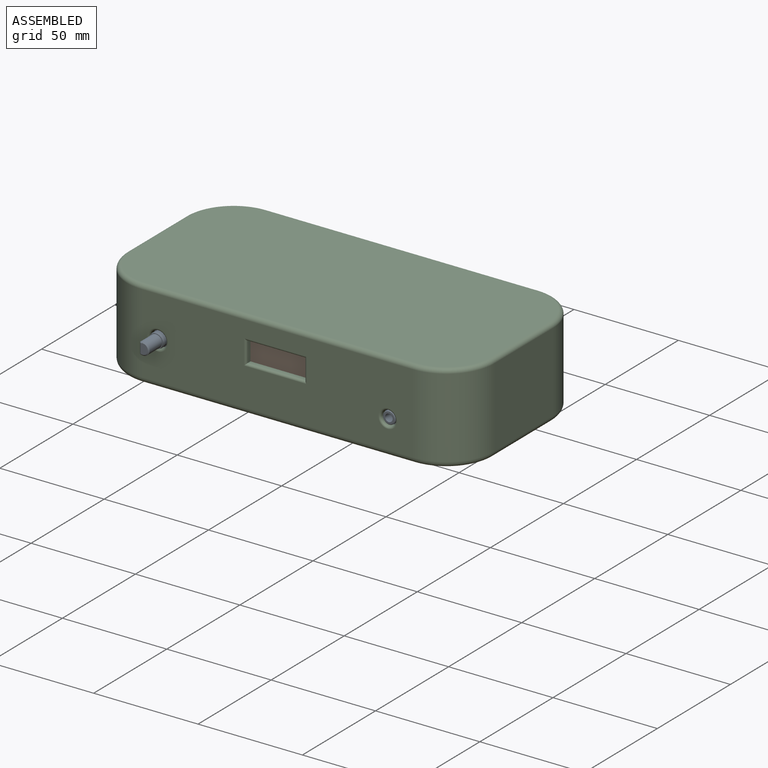
[diagram: assembled view]
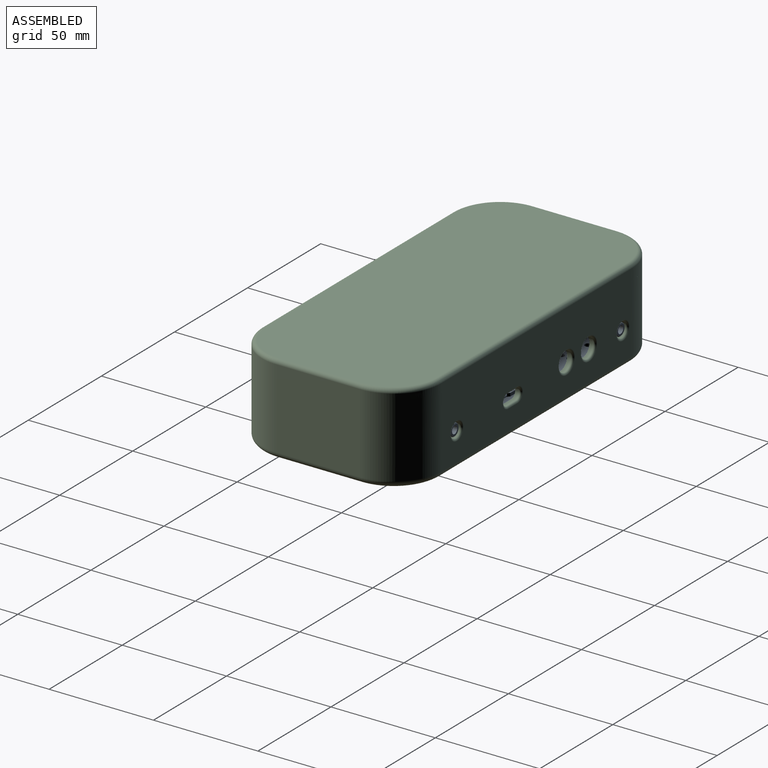
[diagram: assembled view, second angle]
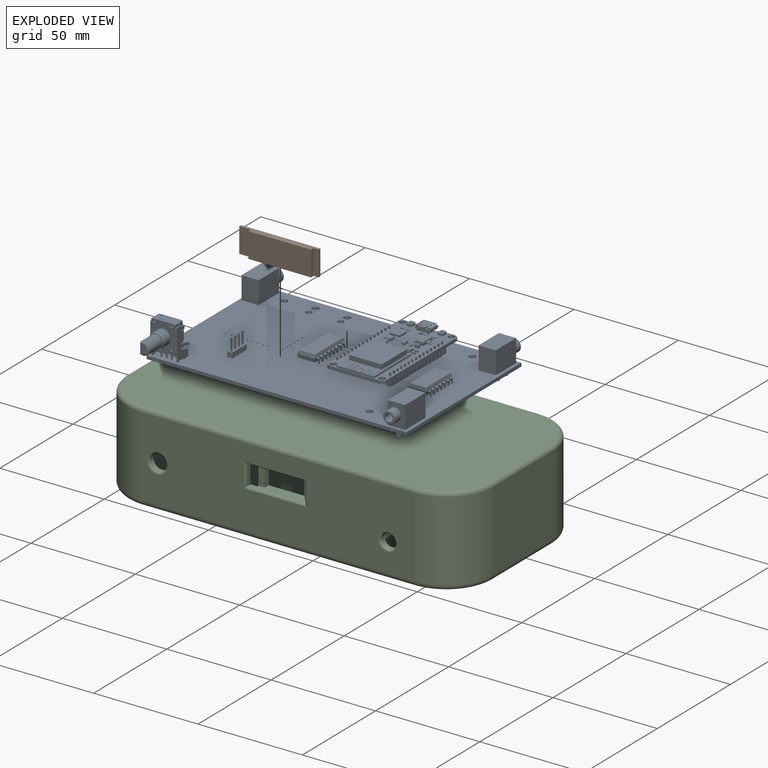
[diagram: exploded view]
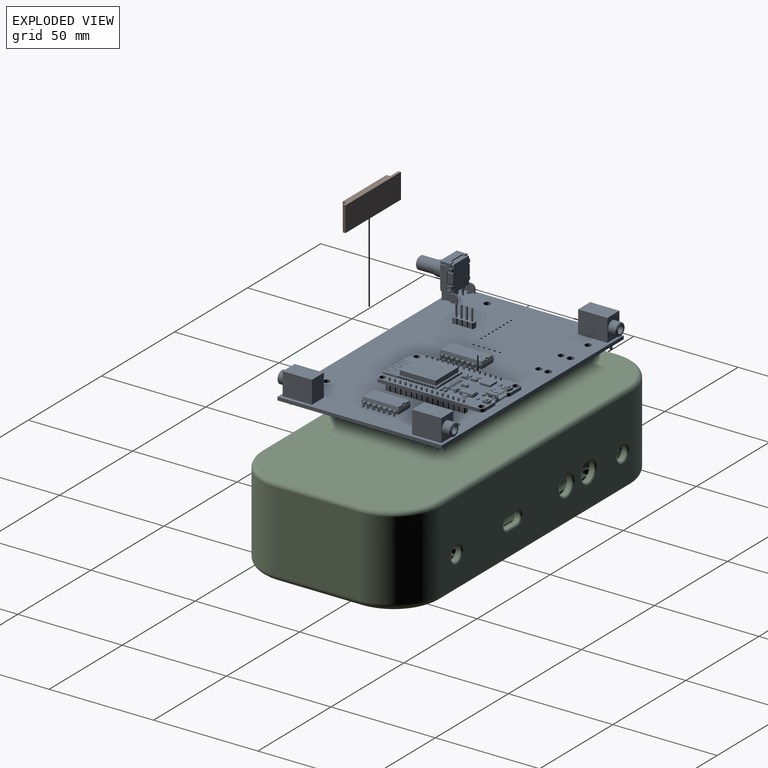
[diagram: exploded view, second angle]
FCSTD DOCUMENT  (FreeCAD 0.20R31683 (Git))
Label: case
License: All rights reserved
objects: Sketcher::SketchObject×21, App::Link×20, Part::Feature×20, PartDesign::SubShapeBinder×11, PartDesign::Pad×8, PartDesign::Pocket×8, App::Part×6, PartDesign::Body×6, PartDesign::Extrusion×5, PartDesign::Plane×5, PartDesign::Fillet×3, App::MeasureDistance×2, Part::SubShapeBinder×2, PartDesign::Solid×2, PartDesign::CoordinateSystem×1, PartDesign::Thickness×1, Spreadsheet::Sheet×1, PartDesign::Split×1
note: 166 computed .brp shape members not serialized (recipe doc carries the construction recipe); baked Part::Feature solids carry a one-line shape summary decoded from their .brp

FEATURE [App::Link] J3_CUI_DEVICES_SJ1_3533NG_4473374c59b9_ln_  label="J3_CUI_DEVICES_SJ1_3533NG_4473374c59b9_ln__CUI_DEVICES_SJ1-3533NG_a19b5a105e05"
  AutoLinkLabel = true
  AutoPlacement = true
  LinkPlacement = pos=(119.54,81.39,5.5) rot=(-0.707107,-0.707107,0;3.14159rad)
  LinkedObject = -> Shape
  Placement = pos=(119.54,81.39,5.5) rot=(0.707107,0.707107,0;3.14159rad)
  SyncGroupVisibility = false
  TreeRank = 86
  _LinkVersion = 1
FEATURE [App::Link] J3_CUI_DEVICES_SJ1_3533NG_4473374c59b9_ln_001  label="J3_CUI_DEVICES_SJ1_3533NG_4473374c59b9_ln_001_CUI_DEVICES_SJ1-3533NG_090c0ab9f9ee"
  AutoLinkLabel = true
  AutoPlacement = true
  LinkPlacement = pos=(5.96,81.39,5.5) rot=(-0.707107,-0.707107,0;3.14159rad)
  LinkedObject = -> Shape
  Placement = pos=(5.96,81.39,5.5) rot=(0.707107,0.707107,0;3.14159rad)
  SyncGroupVisibility = false
  TreeRank = 94
  _LinkVersion = 1
FEATURE [App::Link] J4_KLPX_0848A_2_x_a0df84c5cc1c_ln_  label="J4_KLPX_0848A_2_x_a0df84c5cc1c_ln__KLPX_0848A_2_x_b043b4ffbec8"
  AutoLinkLabel = true
  AutoPlacement = true
  LinkPlacement = pos=(44.45,78.2498,0) rot=(0,0.707107,0.707107;3.14159rad)
  LinkedObject = -> Shape015
  Placement = pos=(44.45,78.2498,0) rot=(0,0.707107,0.707107;3.14159rad)
  SyncGroupVisibility = false
  TreeRank = 91
  _LinkVersion = 1
FEATURE [PartDesign::CoordinateSystem] Local_CS_879e  label="Local_CS_879ee"
  AttacherType = Attacher::AttachEngine3D
  AttachmentSupport = -> [X_Axis]
  FixShape = 1
  InvalidShape = false
  MapMode = 2
  Support = -> [X_Axis]
  TreeRank = 4
  ValidateShape = false
FEATURE [Sketcher::SketchObject] PCB_Sketch_879e  label="PCB_Sketch_879ee"
  ArcFitTolerance = 1e-06
  ExternalBSplineMaxDegree = 5
  ExternalBSplineTolerance = 0.0001
  FixShape = 1
  FullyConstrained = false
  InternalTolerance = 1e-06
  InvalidShape = false
  MakeInternals = false
  TreeRank = 34
  ValidateShape = false
  sketch-geometry (4):
    g0: LineSegment StartX=0 StartY=78.74 StartZ=0 EndX=124.46 EndY=78.74 EndZ=0
    g1: LineSegment StartX=124.46 StartY=78.74 StartZ=0 EndX=124.46 EndY=0 EndZ=0
    g2: LineSegment StartX=124.46 StartY=0 StartZ=0 EndX=0 EndY=0 EndZ=0
    g3: LineSegment StartX=0 StartY=0 StartZ=0 EndX=0 EndY=78.74 EndZ=0
  constraints (4):
    c: Coincident(g2,g3)
    c: Coincident(g0,g3)
    c: Coincident(g1,g2)
    c: Coincident(g0,g1)
FEATURE [Part::Feature] Pcb_879e  label="Pcb_879ee"
  FixShape = 1
  InvalidShape = false
  Placement = pos=(-71.12,138.43,0) rot=(0,0,1;0rad)
  TreeRank = 17
  ValidateShape = false
  shape: bbox 124.5 x 78.74 x 1.6 mm, 164 faces (baked)
FEATURE [App::Part] Board_Geoms_879e  label="Board_Geoms_879ee"
  ClaimAllChildren = false
  ExportMode = 1
  Group = -> [Pcb_879e,PCB_Sketch_879e]
  Origin = -> Origin
  TreeRank = 19
  _ExportChildren = -> [Pcb_879e,PCB_Sketch_879e]
  _GroupVersion = 1
FEATURE [Part::Feature] Shape  label="J3_CUI_DEVICES_SJ1-3533NG_4473374c59b9"
  FixShape = 1
  InvalidShape = false
  Placement = pos=(117.94,-2.65,5.5) rot=(-0.707107,0.707107,0;3.14159rad)
  TreeRank = 40
  ValidateShape = false
  shape: bbox 8.2 x 18.05 x 15.6 mm, 40 faces (baked)
FEATURE [Part::Feature] Shape001  label="U3_DIP_16_W1016mm_c0b8a379621b"
  FixShape = 1
  InvalidShape = false
  Placement = pos=(49.53,50.575,0) rot=(0,0,1;0rad)
  TreeRank = 42
  ValidateShape = false
  shape: bbox 10.16 x 20.32 x 6.98 mm, 300 faces (baked)
FEATURE [Part::Feature] Shape002  label="U2_SW_SPST_B3U-1000P-B_d01e381b36a0"
  FixShape = 1
  InvalidShape = false
  Placement = pos=(73.78,75.36,4) rot=(0,0,1;1.5708rad)
  TreeRank = 44
  ValidateShape = false
  shape: bbox 2.5 x 4 x 2.09 mm, 259 faces (baked)
FEATURE [Part::Feature] Shape003  label="U2_PinHeader_1x15_P254mm_Vertical_d01e381b36a0[3]"
  FixShape = 1
  InvalidShape = false
  Placement = pos=(93.98,32.36,2.5) rot=(1,0,0;3.14159rad)
  TreeRank = 47
  ValidateShape = false
  shape: bbox 2.54 x 38.1 x 11.54 mm, 364 faces (baked)
FEATURE [Part::Feature] Shape004  label="U2_PCB_d01e381b36a0[5]"
  FixShape = 1
  InvalidShape = false
  Placement = pos=(93.98,32.36,2.5) rot=(0,0,1;3.14159rad)
  TreeRank = 50
  ValidateShape = false
  shape: bbox 28 x 51.4 x 1.5 mm, 22 faces (baked)
FEATURE [Part::Feature] Shape005  label="U2_USB_Micro-B_Molex_47346-0001_d01e381b36a0[6]"
  FixShape = 1
  InvalidShape = false
  Placement = pos=(81.28,74.36,4) rot=(0,0,1;3.14159rad)
  TreeRank = 52
  ValidateShape = false
  shape: bbox 7.977 x 5.418 x 2.937 mm, 484 faces (baked)
FEATURE [Part::Feature] Shape006  label="U2_LED_1206_3216Metric_d01e381b36a0[7]"
  FixShape = 1
  InvalidShape = false
  Placement = pos=(87.28,55.36,4) rot=(0,0,-1;1.5708rad)
  TreeRank = 54
  ValidateShape = false
  shape: bbox 1.6 x 3.2 x 1.1 mm, 50 faces (baked)
FEATURE [Part::Feature] Shape007  label="U2_CP_EIA_2012_15_AVX_P_d01e381b36a0[9]"
  FixShape = 1
  InvalidShape = false
  Placement = pos=(87.78,59.86,4) rot=(0,0,1;3.14159rad)
  TreeRank = 57
  ValidateShape = false
  shape: bbox 2.05 x 1.35 x 1.5 mm, 45 faces (baked)
FEATURE [Part::Feature] Shape008  label="U2_SOT_223_d01e381b36a0[10]"
  FixShape = 1
  InvalidShape = false
  Placement = pos=(87.28,65.36,4) rot=(0,0,1;0rad)
  TreeRank = 59
  ValidateShape = false
  shape: bbox 7 x 6.5 x 1.7 mm, 78 faces (baked)
FEATURE [Part::Feature] Shape009  label="U2_R_0603_1608Metric_d01e381b36a0[11]"
  FixShape = 1
  InvalidShape = false
  Placement = pos=(88.28,70.86,4) rot=(0,0,1;3.14159rad)
  TreeRank = 61
  ValidateShape = false
  shape: bbox 1.6 x 0.8 x 0.45 mm, 26 faces (baked)
FEATURE [Part::Feature] Shape010  label="U2_SOT_23_d01e381b36a0[14]"
  FixShape = 1
  InvalidShape = false
  Placement = pos=(81.78,59.86,4) rot=(0,0,1;3.14159rad)
  TreeRank = 65
  ValidateShape = false
  shape: bbox 2.5 x 3 x 1.2 mm, 76 faces (baked)
FEATURE [Part::Feature] Shape011  label="U2_C_0603_1608Metric_d01e381b36a0[18]"
  FixShape = 1
  InvalidShape = false
  Placement = pos=(81.78,70.86,4) rot=(0,0,1;3.14159rad)
  TreeRank = 70
  ValidateShape = false
  shape: bbox 1.6 x 0.8 x 0.8 mm, 28 faces (baked)
FEATURE [Part::Feature] Shape012  label="U2_D_0603_d01e381b36a0[19]"
  FixShape = 1
  InvalidShape = false
  Placement = pos=(84.28,70.86,4) rot=(0,0,1;3.14159rad)
  TreeRank = 72
  ValidateShape = false
  shape: bbox 1.6 x 0.87 x 0.66 mm, 39 faces (baked)
FEATURE [Part::Feature] Shape013  label="U2_QFN-28-1EP_5x5mm_Pitch0.5mm_d01e381b36a0[25]"
  FixShape = 1
  InvalidShape = false
  Placement = pos=(74.28,65.86,4) rot=(0,0,1;3.14159rad)
  TreeRank = 79
  ValidateShape = false
  shape: bbox 5 x 5 x 0.92 mm, 182 faces (baked)
FEATURE [Part::Feature] Shape014  label="U2_ESP32-WROOM-32_d01e381b36a0[30]"
  FixShape = 1
  InvalidShape = false
  Placement = pos=(81.28,42.36,4) rot=(0,0,1;3.14159rad)
  TreeRank = 85
  ValidateShape = false
  shape: bbox 18 x 25.5 x 3.1 mm, 751 faces (baked)
FEATURE [Part::Feature] Shape015  label="J4_KLPX_0848A_2_x_a0df84c5cc1c"
  FixShape = 1
  InvalidShape = false
  Placement = pos=(29.21,78.2498,0) rot=(0,0.707107,0.707107;3.14159rad)
  TreeRank = 88
  ValidateShape = false
  shape: bbox 10 x 19.68 x 21.48 mm, 135 faces, 0 solids (baked)
FEATURE [Part::Feature] Shape016  label="SW1_PEC12R-2220F-S0024_f3370e811a44"
  FixShape = 1
  InvalidShape = false
  Placement = pos=(7.66,6.315,0) rot=(1,0,0;1.5708rad)
  TreeRank = 90
  ValidateShape = false
  shape: bbox 12.82 x 22.4 x 20.6 mm, 298 faces, 13 solids (baked)
FEATURE [Part::Feature] Shape017  label="J6_PinHeader_1x04_P254mm_Vertical_046e1bb5b14f"
  FixShape = 1
  InvalidShape = false
  Placement = pos=(27.94,25.675,0) rot=(0,0,1;0rad)
  TreeRank = 93
  ValidateShape = false
  shape: bbox 2.54 x 10.16 x 11.54 mm, 100 faces (baked)
FEATURE [Part::Feature] Shape018  label="U1_DIP_14_W1016mm_aa2eb500133f"
  FixShape = 1
  InvalidShape = false
  Placement = pos=(102.87,48.035,0) rot=(0,0,1;0rad)
  TreeRank = 96
  ValidateShape = false
  shape: bbox 10.16 x 17.78 x 6.98 mm, 264 faces (baked)
FEATURE [App::Link] U2_C_0603_1608Metric_d01e381b36a0_18__ln_  label="U2_C_0603_1608Metric_d01e381b36a0_18__ln__C_0603_1608Metric_d01e381b36a0[28]"
  AutoLinkLabel = true
  AutoPlacement = true
  LinkPlacement = pos=(89.78,54.36,4) rot=(0,0,1;3.14159rad)
  LinkedObject = -> Shape011
  Placement = pos=(89.78,54.36,4) rot=(0,0,1;3.14159rad)
  SyncGroupVisibility = false
  TreeRank = 82
  _LinkVersion = 1
FEATURE [App::Link] U2_C_0603_1608Metric_d01e381b36a0_18__ln_001  label="U2_C_0603_1608Metric_d01e381b36a0_18__ln_001_C_0603_1608Metric_d01e381b36a0[29]"
  AutoLinkLabel = true
  AutoPlacement = true
  LinkPlacement = pos=(89.78,56.36,4) rot=(0,0,1;3.14159rad)
  LinkedObject = -> Shape011
  Placement = pos=(89.78,56.36,4) rot=(0,0,1;3.14159rad)
  SyncGroupVisibility = false
  TreeRank = 83
  _LinkVersion = 1
FEATURE [App::Link] U2_LED_1206_3216Metric_d01e381b36a0_7__ln_  label="U2_LED_1206_3216Metric_d01e381b36a0_7__ln__LED_1206_3216Metric_d01e381b36a0[8]"
  AutoLinkLabel = true
  AutoPlacement = true
  LinkPlacement = pos=(75.28,55.36,4) rot=(0,0,-1;1.5708rad)
  LinkedObject = -> Shape006
  Placement = pos=(75.28,55.36,4) rot=(0,0,-1;1.5708rad)
  SyncGroupVisibility = false
  TreeRank = 55
  _LinkVersion = 1
FEATURE [App::Link] U2_PinHeader_1x15_P254mm_Vertical_d01e381b36a0_3__ln_  label="U2_PinHeader_1x15_P254mm_Vertical_d01e381b36a0_3__ln__PinHeader_1x15_P254mm_Vertical_d01e381b36a0[4]"
  AutoLinkLabel = true
  AutoPlacement = true
  LinkPlacement = pos=(68.58,32.36,2.5) rot=(1,0,0;3.14159rad)
  LinkedObject = -> Shape003
  Placement = pos=(68.58,32.36,2.5) rot=(1,0,0;3.14159rad)
  SyncGroupVisibility = false
  TreeRank = 48
  _LinkVersion = 1
FEATURE [App::Link] U2_R_0603_1608Metric_d01e381b36a0_11__ln_  label="U2_R_0603_1608Metric_d01e381b36a0_11__ln__R_0603_1608Metric_d01e381b36a0[12]"
  AutoLinkLabel = true
  AutoPlacement = true
  LinkPlacement = pos=(72.78,70.86,4) rot=(0,0,1;3.14159rad)
  LinkedObject = -> Shape009
  Placement = pos=(72.78,70.86,4) rot=(0,0,1;3.14159rad)
  SyncGroupVisibility = false
  TreeRank = 62
  _LinkVersion = 1
FEATURE [App::Link] U2_R_0603_1608Metric_d01e381b36a0_11__ln_001  label="U2_R_0603_1608Metric_d01e381b36a0_11__ln_001_R_0603_1608Metric_d01e381b36a0[13]"
  AutoLinkLabel = true
  AutoPlacement = true
  LinkPlacement = pos=(75.78,70.86,4) rot=(0,0,1;3.14159rad)
  LinkedObject = -> Shape009
  Placement = pos=(75.78,70.86,4) rot=(0,0,1;3.14159rad)
  SyncGroupVisibility = false
  TreeRank = 63
  _LinkVersion = 1
FEATURE [App::Link] U2_R_0603_1608Metric_d01e381b36a0_11__ln_002  label="U2_R_0603_1608Metric_d01e381b36a0_11__ln_002_R_0603_1608Metric_d01e381b36a0[16]"
  AutoLinkLabel = true
  AutoPlacement = true
  LinkPlacement = pos=(72.28,59.86,4) rot=(0,0,1;1.5708rad)
  LinkedObject = -> Shape009
  Placement = pos=(72.28,59.86,4) rot=(0,0,1;1.5708rad)
  SyncGroupVisibility = false
  TreeRank = 67
  _LinkVersion = 1
FEATURE [App::Link] U2_R_0603_1608Metric_d01e381b36a0_11__ln_003  label="U2_R_0603_1608Metric_d01e381b36a0_11__ln_003_R_0603_1608Metric_d01e381b36a0[17]"
  AutoLinkLabel = true
  AutoPlacement = true
  LinkPlacement = pos=(84.78,59.86,4) rot=(0,0,1;1.5708rad)
  LinkedObject = -> Shape009
  Placement = pos=(84.78,59.86,4) rot=(0,0,1;1.5708rad)
  SyncGroupVisibility = false
  TreeRank = 68
  _LinkVersion = 1
FEATURE [App::Link] U2_R_0603_1608Metric_d01e381b36a0_11__ln_004  label="U2_R_0603_1608Metric_d01e381b36a0_11__ln_004_R_0603_1608Metric_d01e381b36a0[20]"
  AutoLinkLabel = true
  AutoPlacement = true
  LinkPlacement = pos=(84.28,55.36,4) rot=(0,0,1;1.5708rad)
  LinkedObject = -> Shape009
  Placement = pos=(84.28,55.36,4) rot=(0,0,1;1.5708rad)
  SyncGroupVisibility = false
  TreeRank = 73
  _LinkVersion = 1
FEATURE [App::Link] U2_R_0603_1608Metric_d01e381b36a0_11__ln_005  label="U2_R_0603_1608Metric_d01e381b36a0_11__ln_005_R_0603_1608Metric_d01e381b36a0[21]"
  AutoLinkLabel = true
  AutoPlacement = true
  LinkPlacement = pos=(82.78,55.36,4) rot=(0,0,1;1.5708rad)
  LinkedObject = -> Shape009
  Placement = pos=(82.78,55.36,4) rot=(0,0,1;1.5708rad)
  SyncGroupVisibility = false
  TreeRank = 74
  _LinkVersion = 1
FEATURE [App::Link] U2_R_0603_1608Metric_d01e381b36a0_11__ln_006  label="U2_R_0603_1608Metric_d01e381b36a0_11__ln_006_R_0603_1608Metric_d01e381b36a0[22]"
  AutoLinkLabel = true
  AutoPlacement = true
  LinkPlacement = pos=(81.28,55.36,4) rot=(0,0,1;1.5708rad)
  LinkedObject = -> Shape009
  Placement = pos=(81.28,55.36,4) rot=(0,0,1;1.5708rad)
  SyncGroupVisibility = false
  TreeRank = 75
  _LinkVersion = 1
FEATURE [App::Link] U2_R_0603_1608Metric_d01e381b36a0_11__ln_007  label="U2_R_0603_1608Metric_d01e381b36a0_11__ln_007_R_0603_1608Metric_d01e381b36a0[23]"
  AutoLinkLabel = true
  AutoPlacement = true
  LinkPlacement = pos=(79.78,55.36,4) rot=(0,0,1;1.5708rad)
  LinkedObject = -> Shape009
  Placement = pos=(79.78,55.36,4) rot=(0,0,1;1.5708rad)
  SyncGroupVisibility = false
  TreeRank = 76
  _LinkVersion = 1
FEATURE [App::Link] U2_R_0603_1608Metric_d01e381b36a0_11__ln_008  label="U2_R_0603_1608Metric_d01e381b36a0_11__ln_008_R_0603_1608Metric_d01e381b36a0[24]"
  AutoLinkLabel = true
  AutoPlacement = true
  LinkPlacement = pos=(78.28,55.36,4) rot=(0,0,1;1.5708rad)
  LinkedObject = -> Shape009
  Placement = pos=(78.28,55.36,4) rot=(0,0,1;1.5708rad)
  SyncGroupVisibility = false
  TreeRank = 77
  _LinkVersion = 1
FEATURE [App::Link] U2_R_0603_1608Metric_d01e381b36a0_11__ln_009  label="U2_R_0603_1608Metric_d01e381b36a0_11__ln_009_R_0603_1608Metric_d01e381b36a0[26]"
  AutoLinkLabel = true
  AutoPlacement = true
  LinkPlacement = pos=(72.78,54.36,4) rot=(0,0,1;3.14159rad)
  LinkedObject = -> Shape009
  Placement = pos=(72.78,54.36,4) rot=(0,0,1;3.14159rad)
  SyncGroupVisibility = false
  TreeRank = 80
  _LinkVersion = 1
FEATURE [App::Link] U2_R_0603_1608Metric_d01e381b36a0_11__ln_010  label="U2_R_0603_1608Metric_d01e381b36a0_11__ln_010_R_0603_1608Metric_d01e381b36a0[27]"
  AutoLinkLabel = true
  AutoPlacement = true
  LinkPlacement = pos=(72.78,56.36,4) rot=(0,0,1;3.14159rad)
  LinkedObject = -> Shape009
  Placement = pos=(72.78,56.36,4) rot=(0,0,1;3.14159rad)
  SyncGroupVisibility = false
  TreeRank = 81
  _LinkVersion = 1
FEATURE [App::Link] U2_SOT_23_d01e381b36a0_14__ln_  label="U2_SOT_23_d01e381b36a0_14__ln__SOT_23_d01e381b36a0[15]"
  AutoLinkLabel = true
  AutoPlacement = true
  LinkPlacement = pos=(75.28,59.86,4) rot=(0,0,1;0rad)
  LinkedObject = -> Shape010
  Placement = pos=(75.28,59.86,4) rot=(0,0,1;0rad)
  SyncGroupVisibility = false
  TreeRank = 66
  _LinkVersion = 1
FEATURE [App::Link] U2_SW_SPST_B3U_1000P_B_d01e381b36a0_ln_  label="U2_SW_SPST_B3U_1000P_B_d01e381b36a0_ln__SW_SPST_B3U-1000P-B_d01e381b36a0[2]"
  AutoLinkLabel = true
  AutoPlacement = true
  LinkPlacement = pos=(88.78,75.36,4) rot=(0,0,1;1.5708rad)
  LinkedObject = -> Shape002
  Placement = pos=(88.78,75.36,4) rot=(0,0,1;1.5708rad)
  SyncGroupVisibility = false
  TreeRank = 45
  _LinkVersion = 1
FEATURE [App::Part] Top_879e  label="Top_879ee"
  ClaimAllChildren = false
  ExportMode = 1
  Group = -> [Shape,Shape001,Shape002,U2_SW_SPST_B3U_1000P_B_d01e381b36a0_ln_,Shape003,U2_PinHeader_1x15_P254mm_Vertical_d01e381b36a0_3__ln_,Shape004,Shape005,Shape006,U2_LED_1206_3216Metric_d01e381b36a0_7__ln_,Shape007,Shape008,Shape009,U2_R_0603_1608Metric_d01e381b36a0_11__ln_,U2_R_0603_1608Metric_d01e381b36a0_11__ln_001,Shape010,U2_SOT_23_d01e381b36a0_14__ln_,U2_R_0603_1608Metric_d01e381b36a0_11__ln_002,+21 more]
  Origin = -> Origin003
  TreeRank = 24
  _ExportChildren = -> [Shape,Shape001,Shape002,U2_SW_SPST_B3U_1000P_B_d01e381b36a0_ln_,Shape003,U2_PinHeader_1x15_P254mm_Vertical_d01e381b36a0_3__ln_,Shape004,Shape005,Shape006,U2_LED_1206_3216Metric_d01e381b36a0_7__ln_,Shape007,Shape008,Shape009,U2_R_0603_1608Metric_d01e381b36a0_11__ln_,U2_R_0603_1608Metric_d01e381b36a0_11__ln_001,Shape010,U2_SOT_23_d01e381b36a0_14__ln_,U2_R_0603_1608Metric_d01e381b36a0_11__ln_002,+21 more]
  _GroupVersion = 1
FEATURE [App::Part] Step_Models_879e  label="Step_Models_879ee"
  ClaimAllChildren = false
  ExportMode = 1
  Group = -> [Top_879e]
  Origin = -> Origin002
  TreeRank = 36
  _ExportChildren = -> [Top_879e]
  _GroupVersion = 1
FEATURE [App::Part] Board_879e  label="PCB"
  ClaimAllChildren = false
  ExportMode = 1
  Group = -> [Local_CS_879e,Board_Geoms_879e,Step_Models_879e]
  Origin = -> Origin001
  Placement = pos=(20,0.5,8) rot=(0,0,1;0rad)
  TreeRank = 97
  _ExportChildren = -> [Local_CS_879e,Board_Geoms_879e,Step_Models_879e]
  _GroupVersion = 1
  expr: Placement.Base.x = <<Parameters>>.case_corner_radius
  expr: Placement.Base.y = <<Parameters>>.clearance
  expr: Placement.Base.z = <<Parameters>>.pcb_bottom_spacing + <<Parameters>>.wall_width
FEATURE [Sketcher::SketchObject] Sketch
  ArcFitTolerance = 1e-06
  AttachmentSupport = -> [XY_Plane001]
  ExternalBSplineMaxDegree = 5
  ExternalBSplineTolerance = 0.0001
  FixShape = 1
  FullyConstrained = true
  InternalTolerance = 1e-06
  InvalidShape = false
  MakeInternals = false
  MapMode = 5
  Support = -> [XY_Plane001]
  TreeRank = 109
  ValidateShape = false
  sketch-geometry (10):
    g0: ArcOfCircle CenterX=20 CenterY=20 CenterZ=0 NormalX=0 NormalY=0 NormalZ=1 AngleXU=0 Radius=20 StartAngle=3.14159 EndAngle=4.71239
    g1: LineSegment StartX=0 StartY=20 StartZ=0 EndX=0 EndY=60 EndZ=0
    g2: ArcOfCircle CenterX=20 CenterY=60 CenterZ=0 NormalX=0 NormalY=0 NormalZ=1 AngleXU=0 Radius=20 StartAngle=1.5708 EndAngle=3.14159
    g3: LineSegment StartX=20 StartY=80 StartZ=0 EndX=150 EndY=80 EndZ=0
    g4: ArcOfCircle CenterX=150 CenterY=60 CenterZ=0 NormalX=0 NormalY=0 NormalZ=1 AngleXU=0 Radius=20 StartAngle=2e-16 EndAngle=1.5708
    g5: LineSegment StartX=170 StartY=60 StartZ=0 EndX=170 EndY=20 EndZ=0
    g6: ArcOfCircle CenterX=150 CenterY=20 CenterZ=0 NormalX=0 NormalY=0 NormalZ=1 AngleXU=0 Radius=20 StartAngle=4.71239 EndAngle=6.28319
    g7: LineSegment StartX=150 StartY=0 StartZ=0 EndX=20 EndY=0 EndZ=0
    g8: GeomPoint [constr] X=0 Y=0 Z=0
    g9: GeomPoint [constr] X=170 Y=80 Z=0
  constraints (23):
    c: Tangent(g0,g1) = 1.5708
    c: Tangent(g1,g2) = 1.5708
    c: Tangent(g2,g3) = 1.5708
    c: Tangent(g3,g4) = 1.5708
    c: Tangent(g4,g5) = 1.5708
    c: Tangent(g5,g6) = 1.5708
    c: Tangent(g6,g7) = 1.5708
    c: Tangent(g7,g0) = 1.5708
    c: Horizontal(g3)
    c: Horizontal(g7)
    c: Vertical(g1)
    c: Vertical(g5)
    c: Equal(g0,g2)
    c: Equal(g2,g4)
    c: Equal(g4,g6)
    c: PointOnObject(g8,g1)
    c: PointOnObject(g8,g7)
    c: PointOnObject(g9,g3)
    c: PointOnObject(g9,g5)
    c: Coincident(g8,g-1)
    c: DistanceX(g7,g7) = 130
    c: DistanceX(g6,g5) = 20
    c: DistanceY(g0,g2) = 80
FEATURE [App::MeasureDistance] Distance  label="Distance: 124.70 mm"
  Distance = 124.704
  P1 = (0,0,0)
  P2 = (124.704,0.0653476,0)
  TreeRank = 110
FEATURE [App::MeasureDistance] Distance001  label="Distance: 78.75 mm"
  Distance = 78.7486
  P1 = (0,0,0)
  P2 = (0.493557,78.7471,0)
  TreeRank = 111
FEATURE [PartDesign::Pad] Pad
  AddSubType = 0
  AlongSketchNormal = false
  AutoTaperInnerAngle = true
  CheckUpToFaceLimits = true
  ClaimChildren = false
  Direction = (0,0,1)
  Fit = 0
  FitJoin = 0
  FixShape = 1
  InnerFit = 0
  InnerFitJoin = 0
  InvalidShape = false
  Length = 40
  Length2 = 100
  Linearize = true
  NewSolid = false
  Profile = -> Sketch
  Suppress = false
  TaperInnerAngle = 0
  TaperInnerAngleRev = 0
  TreeRank = 112
  Type = 0
  ValidateShape = false
  _ProfileBasedVersion = 1
FEATURE [PartDesign::Thickness] Thickness
  AddSubType = 0
  Base = -> Pad [Face10]
  BaseFeature = -> Pad
  FixShape = 1
  Intersection = false
  InvalidShape = false
  Join = 0
  MakeOffset = false
  Mode = 0
  NewSolid = false
  SupportTransform = false
  Suppress = false
  TreeRank = 113
  ValidateShape = false
  Value = 3
  expr: Value = <<Parameters>>.wall_width
FEATURE [Spreadsheet::Sheet] Spreadsheet  label="Parameters"
  PythonMode = false
  ShowCells = 0
  TreeRank = 151
  cells = A1=PCB; D1=Case; A2=Width; B2(pcb_width)=125; D2=Wall Width; E2(wall_width)=3; A3=Depth; B3(pcb_depth)=79; D3=Clearance; E3(clearance)=0.5; A4=Thickness; B4(pcb_thickness)=1.6; D4=Inner Width; E4(case_inner_width)==pcb_width + 5; A5=Bottom Spacing; B5(pcb_bottom_spacing)=5; D5=Corner Radius; E5(case_corner_radius)=20
FEATURE [PartDesign::SubShapeBinder] Binder  label="Binder(SW1_PEC12R-2220F-S0024_f3370e811a44)..."
  BindCopyOnChange = 0
  BindMode = 0
  ClaimChildren = false
  Context = -> Part001 [Body.Binder.]
  EdgeTolerance = 1e-06
  FillStyle = 0
  FixShape = 1
  Fuse = false
  InvalidShape = false
  MakeFace = true
  MergeEdges = true
  OffsetFill = false
  OffsetIntersection = false
  OffsetJoinType = 0
  OffsetOpenResult = false
  Outline = false
  PartialLoad = false
  Relative = true
  SplitEdges = false
  Support = -> [Board_879e[Step_Models_879e.Top_879e.Shape016.Face137,Step_Models_879e.Top_879e.Shape016.Face104,Step_Models_879e.Top_879e.Shape016.Face138]]
  TightBound = false
  TreeRank = 115
  ValidateShape = false
  _Version = 8
FEATURE [PartDesign::SubShapeBinder] Binder001  label="Binder001(J3_CUI_DEVICES_SJ1-3533NG_4473374c59b9)..."
  BindCopyOnChange = 0
  BindMode = 0
  ClaimChildren = false
  Context = -> Part001 [Body.Binder001.]
  EdgeTolerance = 1e-06
  FillStyle = 0
  FixShape = 1
  Fuse = false
  InvalidShape = false
  MakeFace = true
  MergeEdges = true
  OffsetFill = false
  OffsetIntersection = false
  OffsetJoinType = 0
  OffsetOpenResult = false
  Outline = false
  PartialLoad = false
  Relative = true
  SplitEdges = false
  Support = -> [Board_879e[Step_Models_879e.Top_879e.Shape.Face10,Step_Models_879e.Top_879e.Shape.Face5]]
  TightBound = false
  TreeRank = 118
  ValidateShape = false
  _Version = 8
FEATURE [Part::SubShapeBinder] Import  label="Import(J3_CUI_DEVICES_SJ1-3533NG_4473374c59b9)"
  BindCopyOnChange = 0
  BindMode = 0
  ClaimChildren = false
  Context = -> Part001 [Body.Import.]
  EdgeTolerance = 1e-06
  FillStyle = 0
  FixShape = 1
  Fuse = false
  InvalidShape = false
  MakeFace = false
  MergeEdges = true
  OffsetFill = false
  OffsetIntersection = false
  OffsetJoinType = 0
  OffsetOpenResult = false
  Outline = false
  PartialLoad = false
  Relative = true
  SplitEdges = false
  Support = -> [Board_879e[Step_Models_879e.Top_879e.Shape.]]
  TightBound = false
  TreeRank = 119
  ValidateShape = false
  _Version = 8
FEATURE [Sketcher::SketchObject] Sketch001
  ArcFitTolerance = 1e-06
  AttachmentSupport = -> [XZ_Plane001]
  ExternalBSplineMaxDegree = 5
  ExternalBSplineTolerance = 0.0001
  ExternalGeometry = -> [Binder,Binder001,Import]
  FixShape = 1
  FullyConstrained = false
  InternalTolerance = 1e-06
  InvalidShape = false
  MakeInternals = false
  MapMode = 5
  Placement = pos=(0,0,0) rot=(1,0,0;1.5708rad)
  Support = -> [XZ_Plane001]
  TreeRank = 116
  ValidateShape = false
  expr: Constraints[3] = <<Parameters>>.clearance
  expr: Constraints[6] = <<Parameters>>.clearance
  sketch-geometry (4):
    g0: Circle CenterX=27.66 CenterY=18 CenterZ=0 NormalX=0 NormalY=0 NormalZ=1 AngleXU=0 Radius=4
    g1: GeomPoint [constr] X=31.66 Y=18 Z=0
    g2: Circle CenterX=137.94 CenterY=13.5 CenterZ=0 NormalX=0 NormalY=0 NormalZ=1 AngleXU=0 Radius=3.5
    g3: GeomPoint [constr] X=137.94 Y=17 Z=0
  constraints (7):
    c: Coincident(g0,g-6)
    c: PointOnObject(g1,g0)
    c: Horizontal(g1,g-4)
    c: DistanceX(g-4,g1) = 0.5
    c: Coincident(g-8,g2)
    c: PointOnObject(g3,g2)
    c: DistanceY(g-8,g3) = 0.5
FEATURE [PartDesign::Pocket] Pocket
  AddSubType = 1
  AutoTaperInnerAngle = true
  BaseFeature = -> Thickness
  CheckUpToFaceLimits = true
  ClaimChildren = false
  Fit = 0
  FitJoin = 0
  FixShape = 1
  InnerFit = 0
  InnerFitJoin = 0
  InvalidShape = false
  Length = 5
  Length2 = 100
  Linearize = true
  NewSolid = false
  Profile = -> Sketch001
  Reversed = true
  Suppress = false
  TaperInnerAngle = 0
  TaperInnerAngleRev = 0
  TreeRank = 117
  Type = 0
  ValidateShape = false
  _ProfileBasedVersion = 1
  _Version = 1
FEATURE [PartDesign::SubShapeBinder] Binder002  label="Binder002(J3_CUI_DEVICES_SJ1_3533NG_4473374c59b9_ln_001_CUI_DEVICES_SJ1-3533NG_090c0ab9f9ee)..."
  BindCopyOnChange = 0
  BindMode = 0
  ClaimChildren = false
  Context = -> Part001 [Body.Binder002.]
  EdgeTolerance = 1e-06
  FillStyle = 0
  FixShape = 1
  Fuse = false
  InvalidShape = false
  MakeFace = true
  MergeEdges = true
  OffsetFill = false
  OffsetIntersection = false
  OffsetJoinType = 0
  OffsetOpenResult = false
  Outline = false
  PartialLoad = false
  Relative = true
  SplitEdges = false
  Support = -> <blob elided: 541 chars, md5=5183de5e>
  TightBound = false
  TreeRank = 120
  ValidateShape = false
  _Version = 8
FEATURE [Sketcher::SketchObject] Sketch002
  ArcFitTolerance = 1e-06
  AttachmentSupport = -> [XZ_Plane001]
  ExternalBSplineMaxDegree = 5
  ExternalBSplineTolerance = 0.0001
  ExternalGeometry = -> [Binder002]
  FixShape = 1
  FullyConstrained = true
  InternalTolerance = 1e-06
  InvalidShape = false
  MakeInternals = false
  MapMode = 5
  Placement = pos=(0,0,0) rot=(1,0,0;1.5708rad)
  Support = -> [XZ_Plane001]
  TreeRank = 121
  ValidateShape = false
  expr: Constraints[12] = <<Parameters>>.clearance
  expr: Constraints[13] = <<Parameters>>.clearance
  expr: Constraints[14] = <<Parameters>>.clearance
  expr: Constraints[15] = <<Parameters>>.clearance
  sketch-geometry (8):
    g0: Circle CenterX=139.54 CenterY=13.5 CenterZ=0 NormalX=0 NormalY=0 NormalZ=1 AngleXU=0 Radius=3.5
    g1: Circle CenterX=64.45 CenterY=14.5 CenterZ=0 NormalX=0 NormalY=0 NormalZ=1 AngleXU=0 Radius=4.65
    g2: Circle CenterX=49.21 CenterY=14.5 CenterZ=0 NormalX=0 NormalY=0 NormalZ=1 AngleXU=0 Radius=4.65
    g3: Circle CenterX=25.96 CenterY=13.5 CenterZ=0 NormalX=0 NormalY=0 NormalZ=1 AngleXU=0 Radius=3.5
    g4: GeomPoint [constr] X=139.54 Y=17 Z=0
    g5: GeomPoint [constr] X=59.8 Y=14.5 Z=0
    g6: GeomPoint [constr] X=44.56 Y=14.5 Z=0
    g7: GeomPoint [constr] X=25.96 Y=17 Z=0
  constraints (16):
    c: Coincident(g-4,g3)
    c: Coincident(g-6,g2)
    c: Coincident(g-8,g1)
    c: Coincident(g-10,g0)
    c: PointOnObject(g4,g0)
    c: PointOnObject(g5,g1)
    c: PointOnObject(g6,g2)
    c: PointOnObject(g7,g3)
    c: Vertical(g7,g-4)
    c: Horizontal(g6,g-5)
    c: Horizontal(g5,g-7)
    c: Vertical(g4,g-10)
    c: DistanceY(g-10,g4) = 0.5
    c: DistanceX(g5,g-7) = 0.5
    c: DistanceX(g6,g-5) = 0.5
    c: DistanceY(g-4,g7) = 0.5
FEATURE [PartDesign::Pocket] Pocket001
  AddSubType = 1
  AutoTaperInnerAngle = true
  BaseFeature = -> Pocket
  CheckUpToFaceLimits = true
  ClaimChildren = false
  Fit = 0
  FitJoin = 0
  FixShape = 1
  InnerFit = 0
  InnerFitJoin = 0
  InvalidShape = false
  Length = 100
  Length2 = 100
  Linearize = true
  NewSolid = false
  Profile = -> Sketch002
  Suppress = false
  TaperInnerAngle = 0
  TaperInnerAngleRev = 0
  TreeRank = 122
  Type = 0
  ValidateShape = false
  _ProfileBasedVersion = 1
  _Version = 1
FEATURE [PartDesign::SubShapeBinder] Binder003  label="Binder003(U2_USB_Micro-B_Molex_47346-0001_d01e381b36a0[6])..."
  BindCopyOnChange = 0
  BindMode = 0
  ClaimChildren = false
  Context = -> Part001 [Body.Binder003.]
  EdgeTolerance = 1e-06
  FillStyle = 0
  FixShape = 1
  Fuse = false
  InvalidShape = false
  MakeFace = true
  MergeEdges = true
  OffsetFill = false
  OffsetIntersection = false
  OffsetJoinType = 0
  OffsetOpenResult = false
  Outline = false
  PartialLoad = false
  Relative = true
  SplitEdges = false
  Support = -> [Board_879e[Step_Models_879e.Top_879e.Shape005.Face191,Step_Models_879e.Top_879e.Shape005.Face225]]
  TightBound = false
  TreeRank = 123
  ValidateShape = false
  _Version = 8
FEATURE [Sketcher::SketchObject] Sketch003
  ArcFitTolerance = 1e-06
  AttachmentSupport = -> [XZ_Plane001]
  ExternalBSplineMaxDegree = 5
  ExternalBSplineTolerance = 0.0001
  ExternalGeometry = -> [Binder003]
  FixShape = 1
  FullyConstrained = true
  InternalTolerance = 1e-06
  InvalidShape = false
  MakeInternals = false
  MapMode = 5
  Placement = pos=(0,0,0) rot=(1,0,0;1.5708rad)
  Support = -> [XZ_Plane001]
  TreeRank = 124
  ValidateShape = false
  sketch-geometry (4):
    g0: ArcOfCircle CenterX=98.0835 CenterY=13.2324 CenterZ=0 NormalX=0 NormalY=0 NormalZ=1 AngleXU=0 Radius=2.7231 StartAngle=1.5708 EndAngle=4.71239
    g1: ArcOfCircle CenterX=104.437 CenterY=13.2324 CenterZ=0 NormalX=0 NormalY=0 NormalZ=1 AngleXU=0 Radius=2.7231 StartAngle=4.71239 EndAngle=7.85398
    g2: LineSegment StartX=98.0835 StartY=10.5093 StartZ=0 EndX=104.437 EndY=10.5093 EndZ=0
    g3: LineSegment StartX=104.437 StartY=15.9555 StartZ=0 EndX=98.0835 EndY=15.9555 EndZ=0
  constraints (10):
    c: Tangent(g0,g2) = -1.5708
    c: Tangent(g2,g1) = -1.5708
    c: Tangent(g1,g3) = -1.5708
    c: Tangent(g3,g0) = -1.5708
    c: Equal(g0,g1)
    c: Horizontal(g3)
    c: Vertical(g0,g-35)
    c: Vertical(g1,g-13)
    c: DistanceY(g-4,g1) = 1.5
    c: DistanceY(g1,g-19) = 1.5
FEATURE [PartDesign::Pocket] Pocket002
  AddSubType = 1
  AutoTaperInnerAngle = true
  BaseFeature = -> Pocket001
  CheckUpToFaceLimits = true
  ClaimChildren = false
  Fit = 0
  FitJoin = 0
  FixShape = 1
  InnerFit = 0
  InnerFitJoin = 0
  InvalidShape = false
  Length = 5
  Length2 = 100
  Linearize = true
  NewSolid = false
  Profile = -> Sketch003
  Suppress = false
  TaperInnerAngle = 0
  TaperInnerAngleRev = 0
  TreeRank = 125
  Type = 1
  ValidateShape = false
  _ProfileBasedVersion = 1
  _Version = 1
FEATURE [PartDesign::SubShapeBinder] Binder004  label="Binder004(Pocket002)..."
  BindCopyOnChange = 0
  BindMode = 0
  ClaimChildren = false
  Context = -> Part001 [Body.Binder004.]
  EdgeTolerance = 1e-06
  FillStyle = 0
  FixShape = 1
  Fuse = false
  InvalidShape = false
  MakeFace = true
  MergeEdges = true
  OffsetFill = false
  OffsetIntersection = false
  OffsetJoinType = 0
  OffsetOpenResult = false
  Outline = false
  PartialLoad = false
  Relative = true
  SplitEdges = false
  Support = -> [Pocket002[Edge41,Edge40,Edge39,Edge38,Edge37,Edge36,Edge35,Edge34]]
  TightBound = false
  TreeRank = 126
  ValidateShape = false
  _Version = 8
FEATURE [PartDesign::Pad] Pad001
  AddSubType = 0
  AlongSketchNormal = false
  AutoTaperInnerAngle = true
  BaseFeature = -> Pocket002
  CheckUpToFaceLimits = true
  ClaimChildren = false
  Direction = (0,0,1)
  Fit = 0
  FitJoin = 0
  FixShape = 1
  InnerFit = 0
  InnerFitJoin = 0
  InvalidShape = false
  Length = 3
  Length2 = 100
  Linearize = true
  NewSolid = false
  Profile = -> Binder004
  Reversed = true
  Suppress = false
  TaperInnerAngle = 0
  TaperInnerAngleRev = 0
  TreeRank = 127
  Type = 0
  ValidateShape = false
  _ProfileBasedVersion = 1
  expr: Length = <<Parameters>>.wall_width
FEATURE [PartDesign::Fillet] Fillet
  AddSubType = 0
  Base = -> Pad001 [Edge121,Edge122,Edge109,Edge84,Edge123,Edge124,Edge125,Edge96]
  BaseFeature = -> Pad001
  FixShape = 1
  InvalidShape = false
  NewSolid = false
  Radius = 2
  SupportTransform = false
  Suppress = false
  TreeRank = 128
  ValidateShape = false
FEATURE [Sketcher::SketchObject] Sketch004
  ArcFitTolerance = 1e-06
  AttachmentSupport = -> [XZ_Plane001]
  ExternalBSplineMaxDegree = 5
  ExternalBSplineTolerance = 0.0001
  FixShape = 1
  FullyConstrained = true
  InternalTolerance = 1e-06
  InvalidShape = false
  MakeInternals = false
  MapMode = 5
  Placement = pos=(0,0,0) rot=(1,0,0;1.5708rad)
  Support = -> [XZ_Plane001]
  TreeRank = 142
  ValidateShape = false
  sketch-geometry (4):
    g0: LineSegment StartX=0 StartY=12 StartZ=0 EndX=38 EndY=12 EndZ=0
    g1: LineSegment StartX=38 StartY=12 StartZ=0 EndX=38 EndY=0 EndZ=0
    g2: LineSegment StartX=38 StartY=0 StartZ=0 EndX=0 EndY=0 EndZ=0
    g3: LineSegment StartX=0 StartY=0 StartZ=0 EndX=0 EndY=12 EndZ=0
  constraints (11):
    c: Coincident(g0,g1)
    c: Coincident(g1,g2)
    c: Coincident(g2,g3)
    c: Coincident(g3,g0)
    c: Horizontal(g0)
    c: Horizontal(g2)
    c: Vertical(g1)
    c: Vertical(g3)
    c: DistanceX(g0,g0) = 38
    c: DistanceY(g3,g3) = 12
    c: Coincident(g2,g-1)
FEATURE [PartDesign::Pad] Pad002
  AddSubType = 0
  AlongSketchNormal = false
  AutoTaperInnerAngle = true
  CheckUpToFaceLimits = true
  ClaimChildren = false
  Direction = (0,-1,-2e-16)
  Fit = 0
  FitJoin = 0
  FixShape = 1
  InnerFit = 0
  InnerFitJoin = 0
  InvalidShape = false
  Length = 1.25
  Length2 = 100
  Linearize = true
  NewSolid = false
  Profile = -> Sketch004
  Suppress = false
  TaperInnerAngle = 0
  TaperInnerAngleRev = 0
  TreeRank = 143
  Type = 0
  ValidateShape = false
  _ProfileBasedVersion = 1
FEATURE [PartDesign::Body] Body001  label="PCB001"
  AutoGroupSolids = false
  ClaimAllChildren = false
  ExportMode = 0
  FixShape = 1
  Group = -> [Sketch004,Pad002]
  InvalidShape = false
  Origin = -> Origin006
  Tip = -> Pad002
  TreeRank = 141
  ValidateShape = false
  _ExportChildren = -> [Pad002]
  _GroupVersion = 1
FEATURE [Sketcher::SketchObject] Sketch005
  ArcFitTolerance = 1e-06
  AttachmentSupport = -> [XZ_Plane003]
  ExternalBSplineMaxDegree = 5
  ExternalBSplineTolerance = 0.0001
  FixShape = 1
  FullyConstrained = true
  InternalTolerance = 1e-06
  InvalidShape = false
  MakeInternals = false
  MapMode = 5
  Placement = pos=(0,0,0) rot=(1,0,0;1.5708rad)
  Support = -> [XZ_Plane003]
  TreeRank = 162
  ValidateShape = false
  sketch-geometry (4):
    g0: LineSegment StartX=5.6 StartY=12 StartZ=0 EndX=35.6 EndY=12 EndZ=0
    g1: LineSegment StartX=35.6 StartY=12 StartZ=0 EndX=35.6 EndY=0 EndZ=0
    g2: LineSegment StartX=35.6 StartY=0 StartZ=0 EndX=5.6 EndY=0 EndZ=0
    g3: LineSegment StartX=5.6 StartY=0 StartZ=0 EndX=5.6 EndY=12 EndZ=0
  constraints (12):
    c: Coincident(g0,g1)
    c: Coincident(g1,g2)
    c: Coincident(g2,g3)
    c: Coincident(g3,g0)
    c: Horizontal(g0)
    c: Horizontal(g2)
    c: Vertical(g1)
    c: Vertical(g3)
    c: DistanceX(g0,g0) = 30
    c: DistanceY(g3,g3) = 12
    c: Horizontal(g2,g-1)
    c: DistanceX(g-1,g2) = 5.6
FEATURE [PartDesign::Pad] Pad003
  AddSubType = 0
  AlongSketchNormal = false
  AutoTaperInnerAngle = true
  CheckUpToFaceLimits = true
  ClaimChildren = false
  Direction = (0,-1,2e-16)
  Fit = 0
  FitJoin = 0
  FixShape = 1
  InnerFit = 0
  InnerFitJoin = 0
  InvalidShape = false
  Length = 1.75
  Length2 = 100
  Linearize = true
  NewSolid = false
  Profile = -> Sketch005
  Suppress = false
  TaperInnerAngle = 0
  TaperInnerAngleRev = 0
  TreeRank = 163
  Type = 0
  ValidateShape = false
  _ProfileBasedVersion = 1
  expr: Length = 1.75
FEATURE [PartDesign::Body] Body002  label="Glass"
  AutoGroupSolids = false
  ClaimAllChildren = false
  ExportMode = 0
  FixShape = 1
  Group = -> [Sketch005,Pad003]
  InvalidShape = false
  Origin = -> Origin008
  Placement = pos=(0,-1.25,0) rot=(0,0,1;0rad)
  Tip = -> Pad003
  TreeRank = 161
  ValidateShape = false
  _ExportChildren = -> [Pad003]
  _GroupVersion = 1
FEATURE [App::Part] Part  label="OLED Module"
  ClaimAllChildren = false
  ExportMode = 1
  Group = -> [Body001,Body002]
  Origin = -> Origin005
  Placement = pos=(63.5,3,18) rot=(0,0,1;0rad)
  TreeRank = 149
  _ExportChildren = -> [Body001,Body002]
  _GroupVersion = 1
  expr: Placement.Base.x = 20 + <<Parameters>>.pcb_width / 2 - 38 / 2
  expr: Placement.Base.z = <<Parameters>>.pcb_bottom_spacing + <<Parameters>>.wall_width + 10
FEATURE [PartDesign::SubShapeBinder] Binder005  label="Binder005(Pad003)"
  BindCopyOnChange = 0
  BindMode = 0
  ClaimChildren = false
  Context = -> Part001 [Body.Binder005.]
  EdgeTolerance = 1e-06
  FillStyle = 0
  FixShape = 1
  Fuse = false
  InvalidShape = false
  MakeFace = true
  MergeEdges = true
  OffsetFill = false
  OffsetIntersection = false
  OffsetJoinType = 0
  OffsetOpenResult = false
  Outline = false
  PartialLoad = false
  Relative = true
  SplitEdges = false
  Support = -> [Part[Body002.Pad003.Face6]]
  TightBound = false
  TreeRank = 164
  ValidateShape = false
  _Version = 8
FEATURE [Sketcher::SketchObject] Sketch006
  ArcFitTolerance = 1e-06
  AttachmentSupport = -> [XZ_Plane001]
  ExternalBSplineMaxDegree = 5
  ExternalBSplineTolerance = 0.0001
  ExternalGeometry = -> [Binder005]
  FixShape = 1
  FullyConstrained = true
  InternalTolerance = 1e-06
  InvalidShape = false
  MakeInternals = false
  MapMode = 5
  Placement = pos=(0,0,0) rot=(1,0,0;1.5708rad)
  Support = -> [XZ_Plane001]
  TreeRank = 165
  ValidateShape = false
  sketch-geometry (4):
    g0: LineSegment StartX=70.1 StartY=29 StartZ=0 EndX=98.1 EndY=29 EndZ=0
    g1: LineSegment StartX=98.1 StartY=29 StartZ=0 EndX=98.1 EndY=19 EndZ=0
    g2: LineSegment StartX=98.1 StartY=19 StartZ=0 EndX=70.1 EndY=19 EndZ=0
    g3: LineSegment StartX=70.1 StartY=19 StartZ=0 EndX=70.1 EndY=29 EndZ=0
  constraints (12):
    c: Coincident(g0,g1)
    c: Coincident(g1,g2)
    c: Coincident(g2,g3)
    c: Coincident(g3,g0)
    c: Horizontal(g0)
    c: Horizontal(g2)
    c: Vertical(g1)
    c: Vertical(g3)
    c: DistanceX(g-4,g0) = 1
    c: DistanceX(g0,g-5) = 1
    c: DistanceY(g0,g-5) = 1
    c: DistanceY(g-6,g1) = 1
FEATURE [Sketcher::SketchObject] Sketch007
  ArcFitTolerance = 1e-06
  AttachmentSupport = -> [XZ_Plane001]
  ExternalBSplineMaxDegree = 5
  ExternalBSplineTolerance = 0.0001
  FixShape = 1
  FullyConstrained = true
  InternalTolerance = 1e-06
  InvalidShape = false
  MakeInternals = false
  MapMode = 5
  Placement = pos=(0,0,0) rot=(1,0,0;1.5708rad)
  Support = -> [XZ_Plane001]
  TreeRank = 177
  ValidateShape = false
  expr: Constraints[2] = <<Parameters>>.case_inner_width + <<Parameters>>.case_corner_radius * 2 - <<Parameters>>.wall_width - 3
  sketch-geometry (1):
    g0: LineSegment StartX=3 StartY=35 StartZ=0 EndX=167 EndY=35 EndZ=0
  constraints (4):
    c: Horizontal(g0)
    c: DistanceY(g-1,g0) = 35
    c: DistanceX(g0,g0) = 164
    c: DistanceX(g-1,g0) = 3
FEATURE [PartDesign::Extrusion] Extrusion
  AddSubType = 0
  AlongSketchNormal = false
  AutoTaperInnerAngle = true
  CheckUpToFaceLimits = true
  ClaimChildren = false
  Direction = (0,-1,-2e-16)
  Fit = 0
  FitJoin = 0
  FixShape = 1
  InnerFit = 0
  InnerFitJoin = 0
  InvalidShape = false
  Length = 40
  Length2 = 100
  Linearize = true
  Midplane = true
  NewSolid = false
  Profile = -> Sketch007
  Suppress = false
  TaperInnerAngle = 0
  TaperInnerAngleRev = 0
  TreeRank = 178
  Type = 0
  ValidateShape = false
  _ProfileBasedVersion = 1
FEATURE [Sketcher::SketchObject] Sketch008
  ArcFitTolerance = 1e-06
  AttachmentOffset = pos=(0,0,-80) rot=(0,0,1;0rad)
  AttachmentSupport = -> [XZ_Plane001]
  ExternalBSplineMaxDegree = 5
  ExternalBSplineTolerance = 0.0001
  ExternalGeometry = -> [Extrusion,Sketch007]
  FixShape = 1
  FullyConstrained = true
  InternalTolerance = 1e-06
  InvalidShape = false
  MakeInternals = false
  MapMode = 5
  Placement = pos=(0,80,1.78e-14) rot=(1,0,0;1.5708rad)
  Support = -> [XZ_Plane001]
  TreeRank = 198
  ValidateShape = false
  sketch-geometry (9):
    g0: LineSegment StartX=167 StartY=35 StartZ=0 EndX=162 EndY=35 EndZ=0
    g1: LineSegment StartX=150 StartY=23 StartZ=0 EndX=150 EndY=13 EndZ=0
    g2: LineSegment StartX=144 StartY=7 StartZ=0 EndX=26 EndY=7 EndZ=0
    g3: LineSegment StartX=20 StartY=13 StartZ=0 EndX=20 EndY=23 EndZ=0
    g4: LineSegment StartX=8 StartY=35 StartZ=0 EndX=3 EndY=35 EndZ=0
    g5: ArcOfCircle CenterX=162 CenterY=23 CenterZ=0 NormalX=0 NormalY=0 NormalZ=1 AngleXU=0 Radius=12 StartAngle=1.5708 EndAngle=3.14159
    g6: ArcOfCircle CenterX=144 CenterY=13 CenterZ=0 NormalX=0 NormalY=0 NormalZ=1 AngleXU=0 Radius=6 StartAngle=4.71239 EndAngle=6.28319
    g7: ArcOfCircle CenterX=26 CenterY=13 CenterZ=0 NormalX=0 NormalY=0 NormalZ=1 AngleXU=0 Radius=6 StartAngle=3.14159 EndAngle=4.71239
    g8: ArcOfCircle CenterX=8 CenterY=23 CenterZ=0 NormalX=0 NormalY=0 NormalZ=1 AngleXU=0 Radius=12 StartAngle=0 EndAngle=1.5708
  constraints (30):
    c: Horizontal(g0)
    c: Vertical(g1)
    c: Horizontal(g2)
    c: Vertical(g3)
    c: Horizontal(g4)
    c: Coincident(g0,g-5)
    c: Coincident(g5,g0)
    c: Coincident(g5,g1)
    c: Coincident(g6,g1)
    c: Coincident(g6,g2)
    c: Coincident(g7,g2)
    c: Coincident(g7,g3)
    c: Coincident(g8,g4)
    c: Coincident(g8,g3)
    c: Coincident(g4,g-4)
    c: Horizontal(g8,g3)
    c: Horizontal(g5,g1)
    c: Horizontal(g7,g3)
    c: Horizontal(g6,g1)
    c: Vertical(g6,g2)
    c: Vertical(g2,g7)
    c: Vertical(g4,g8)
    c: Vertical(g5,g5)
    c: DistanceY(g-1,g2) = 7
    c: DistanceX(g-4,g3) = 17
    c: DistanceX(g1,g0) = 17
    c: Equal(g8,g5)
    c: Equal(g7,g6)
    c: DistanceX(g4,g4) = 5
    c: DistanceY(g3,g3) = 10
FEATURE [PartDesign::Extrusion] Extrusion001
  AddSubType = 0
  AlongSketchNormal = false
  AutoTaperInnerAngle = true
  CheckUpToFaceLimits = true
  ClaimChildren = false
  Direction = (0,-1,-2e-16)
  Fit = 0
  FitJoin = 0
  FixShape = 1
  InnerFit = 0
  InnerFitJoin = 0
  InvalidShape = false
  Length = 40
  Length2 = 100
  Linearize = true
  Midplane = true
  NewSolid = false
  Profile = -> Sketch008
  Suppress = false
  TaperInnerAngle = 0
  TaperInnerAngleRev = 0
  TreeRank = 199
  Type = 0
  ValidateShape = false
  _ProfileBasedVersion = 1
FEATURE [PartDesign::Plane] DatumPlane
  AttachmentOffset = pos=(0,0,0) rot=(0,1,0;1.5708rad)
  AttachmentSupport = -> [Extrusion,Extrusion001]
  FixShape = 1
  InvalidShape = false
  Length = 120
  MapMode = 45
  MinimumLength = 10
  MinimumWidth = 10
  Placement = pos=(167,40,35) rot=(-0.57735,0.57735,0.57735;4.18879rad)
  ResizeMode = 0
  Support = -> [Extrusion,Extrusion001]
  TreeRank = 200
  ValidateShape = false
  Width = 28
FEATURE [Sketcher::SketchObject] Sketch009
  ArcFitTolerance = 1e-06
  AttachmentSupport = -> [DatumPlane]
  ExternalBSplineMaxDegree = 5
  ExternalBSplineTolerance = 0.0001
  ExternalGeometry = -> [Extrusion001,Extrusion]
  FixShape = 1
  FullyConstrained = true
  InternalTolerance = 1e-06
  InvalidShape = false
  MakeInternals = false
  MapMode = 5
  Placement = pos=(167,40,35) rot=(-0.57735,0.57735,0.57735;4.18879rad)
  Support = -> [DatumPlane]
  TreeRank = 201
  ValidateShape = false
  sketch-geometry (1):
    g0: LineSegment StartX=-60 StartY=-2.13e-14 StartZ=0 EndX=60 EndY=7.1e-15 EndZ=0
  constraints (2):
    c: Coincident(g0,g-4)
    c: Coincident(g0,g-3)
FEATURE [PartDesign::Extrusion] Extrusion002
  AddSubType = 0
  AlongSketchNormal = false
  AutoTaperInnerAngle = true
  CheckUpToFaceLimits = true
  ClaimChildren = false
  Direction = (-1,1.1e-15,0)
  Fit = 0
  FitJoin = 0
  FixShape = 1
  InnerFit = 0
  InnerFitJoin = 0
  InvalidShape = false
  Length = 20
  Length2 = 100
  Linearize = true
  NewSolid = false
  Profile = -> Sketch009
  Reversed = true
  Suppress = false
  TaperInnerAngle = 0
  TaperInnerAngleRev = 0
  TreeRank = 202
  Type = 0
  ValidateShape = false
  _ProfileBasedVersion = 1
FEATURE [PartDesign::Plane] DatumPlane001
  AttachmentOffset = pos=(0,0,0) rot=(0,1,0;1.5708rad)
  AttachmentSupport = -> [Extrusion,Extrusion001]
  FixShape = 1
  InvalidShape = false
  Length = 120
  MapMode = 45
  MinimumLength = 10
  MinimumWidth = 10
  Placement = pos=(3,40,35) rot=(-0.57735,0.57735,0.57735;4.18879rad)
  ResizeMode = 0
  Support = -> [Extrusion,Extrusion001]
  TreeRank = 203
  ValidateShape = false
  Width = 28
FEATURE [Sketcher::SketchObject] Sketch010
  ArcFitTolerance = 1e-06
  AttachmentSupport = -> [DatumPlane001]
  ExternalBSplineMaxDegree = 5
  ExternalBSplineTolerance = 0.0001
  ExternalGeometry = -> [Extrusion,Extrusion001]
  FixShape = 1
  FullyConstrained = true
  InternalTolerance = 1e-06
  InvalidShape = false
  MakeInternals = false
  MapMode = 5
  Placement = pos=(3,40,35) rot=(-0.57735,0.57735,0.57735;4.18879rad)
  Support = -> [DatumPlane001]
  TreeRank = 204
  ValidateShape = false
  sketch-geometry (1):
    g0: LineSegment StartX=-60 StartY=-2.13e-14 StartZ=0 EndX=60 EndY=7.1e-15 EndZ=0
  constraints (2):
    c: Coincident(g0,g-3)
    c: Coincident(g0,g-4)
FEATURE [PartDesign::Extrusion] Extrusion003
  AddSubType = 0
  AlongSketchNormal = false
  AutoTaperInnerAngle = true
  CheckUpToFaceLimits = true
  ClaimChildren = false
  Direction = (-1,2e-16,0)
  Fit = 0
  FitJoin = 0
  FixShape = 1
  InnerFit = 0
  InnerFitJoin = 0
  InvalidShape = false
  Length = 20
  Length2 = 100
  Linearize = true
  NewSolid = false
  Profile = -> Sketch010
  Suppress = false
  TaperInnerAngle = 0
  TaperInnerAngleRev = 0
  TreeRank = 205
  Type = 0
  ValidateShape = false
  _ProfileBasedVersion = 1
FEATURE [PartDesign::SubShapeBinder] Binder007  label="Binder007(Pcb_879ee)"
  BindCopyOnChange = 0
  BindMode = 0
  ClaimChildren = false
  Context = -> Part001 [Body.Binder007.]
  EdgeTolerance = 1e-06
  FillStyle = 0
  FixShape = 1
  Fuse = false
  InvalidShape = false
  MakeFace = true
  MergeEdges = true
  OffsetFill = false
  OffsetIntersection = false
  OffsetJoinType = 0
  OffsetOpenResult = false
  Outline = false
  PartialLoad = false
  Relative = true
  SplitEdges = false
  Support = -> [Board_879e[Board_Geoms_879e.Pcb_879e.]]
  TightBound = false
  TreeRank = 235
  ValidateShape = false
  _Version = 8
FEATURE [Sketcher::SketchObject] Sketch011
  ArcFitTolerance = 1e-06
  AttachmentSupport = -> [XY_Plane001]
  ExternalBSplineMaxDegree = 5
  ExternalBSplineTolerance = 0.0001
  ExternalGeometry = -> [Binder007]
  FixShape = 1
  FullyConstrained = true
  InternalTolerance = 1e-06
  InvalidShape = false
  MakeInternals = false
  MapMode = 5
  Support = -> [XY_Plane001]
  TreeRank = 236
  ValidateShape = false
  sketch-geometry (4):
    g0: Circle CenterX=35.24 CenterY=72.89 CenterZ=0 NormalX=0 NormalY=0 NormalZ=1 AngleXU=0 Radius=4.5
    g1: Circle CenterX=125.41 CenterY=72.89 CenterZ=0 NormalX=0 NormalY=0 NormalZ=1 AngleXU=0 Radius=4.5
    g2: Circle CenterX=121.6 CenterY=8.12 CenterZ=0 NormalX=0 NormalY=0 NormalZ=1 AngleXU=0 Radius=4.5
    g3: Circle CenterX=26.35 CenterY=18.28 CenterZ=0 NormalX=0 NormalY=0 NormalZ=1 AngleXU=0 Radius=4.5
  constraints (8):
    c: Coincident(g1,g-4)
    c: Coincident(g0,g-3)
    c: Coincident(g3,g-6)
    c: Coincident(g2,g-5)
    c: Equal(g1,g0)
    c: Equal(g3,g2)
    c: Equal(g0,g3)
    c: Diameter(g0) = 9
FEATURE [PartDesign::Pad] Pad004
  AddSubType = 0
  AlongSketchNormal = false
  AutoTaperInnerAngle = true
  BaseFeature = -> Fillet
  CheckUpToFaceLimits = true
  ClaimChildren = false
  Direction = (0,0,1)
  Fit = 0
  FitJoin = 0
  FixShape = 1
  InnerFit = 0
  InnerFitJoin = 0
  InvalidShape = false
  Length = 10
  Length2 = 100
  Linearize = true
  NewSolid = false
  Profile = -> Sketch011
  Suppress = false
  TaperInnerAngle = 0
  TaperInnerAngleRev = 0
  TreeRank = 237
  Type = 3
  UpToFace = -> Binder007 [Face164]
  ValidateShape = false
  _ProfileBasedVersion = 1
FEATURE [Sketcher::SketchObject] Sketch012
  ArcFitTolerance = 1e-06
  AttachmentSupport = -> [XY_Plane001]
  ExternalBSplineMaxDegree = 5
  ExternalBSplineTolerance = 0.0001
  ExternalGeometry = -> [Binder007]
  FixShape = 1
  FullyConstrained = true
  InternalTolerance = 1e-06
  InvalidShape = false
  MakeInternals = false
  MapMode = 5
  Support = -> [XY_Plane001]
  TreeRank = 238
  ValidateShape = false
  sketch-geometry (8):
    g0: LineSegment StartX=24.85 StartY=74.39 StartZ=0 EndX=126.91 EndY=74.39 EndZ=0
    g1: LineSegment StartX=126.91 StartY=74.39 StartZ=0 EndX=126.91 EndY=6.62 EndZ=0
    g2: LineSegment StartX=126.91 StartY=6.62 StartZ=0 EndX=24.85 EndY=6.62 EndZ=0
    g3: LineSegment StartX=24.85 StartY=6.62 StartZ=0 EndX=24.85 EndY=74.39 EndZ=0
    g4: LineSegment StartX=27.85 StartY=71.39 StartZ=0 EndX=123.91 EndY=71.39 EndZ=0
    g5: LineSegment StartX=123.91 StartY=71.39 StartZ=0 EndX=123.91 EndY=9.62 EndZ=0
    g6: LineSegment StartX=123.91 StartY=9.62 StartZ=0 EndX=27.85 EndY=9.62 EndZ=0
    g7: LineSegment StartX=27.85 StartY=9.62 StartZ=0 EndX=27.85 EndY=71.39 EndZ=0
  constraints (24):
    c: Coincident(g0,g1)
    c: Coincident(g1,g2)
    c: Coincident(g2,g3)
    c: Coincident(g3,g0)
    c: Horizontal(g0)
    c: Horizontal(g2)
    c: Vertical(g1)
    c: Vertical(g3)
    c: Coincident(g4,g5)
    c: Coincident(g5,g6)
    c: Coincident(g6,g7)
    c: Coincident(g7,g4)
    c: Horizontal(g4)
    c: Horizontal(g6)
    c: Vertical(g5)
    c: Vertical(g7)
    c: DistanceY(g4,g-4) = 1.5
    c: DistanceX(g4,g-4) = 1.5
    c: DistanceY(g-5,g5) = 1.5
    c: DistanceX(g-6,g6) = 1.5
    c: DistanceX(g-4,g0) = 1.5
    c: DistanceY(g-4,g0) = 1.5
    c: DistanceX(g2,g-6) = 1.5
    c: DistanceY(g1,g-5) = 1.5
FEATURE [PartDesign::Pad] Pad005
  AddSubType = 0
  AlongSketchNormal = false
  AutoTaperInnerAngle = true
  BaseFeature = -> Pad004
  CheckUpToFaceLimits = true
  ClaimChildren = false
  Direction = (0,0,1)
  Fit = 0
  FitJoin = 0
  FixShape = 1
  InnerFit = 0
  InnerFitJoin = 0
  InvalidShape = false
  Length = 10
  Length2 = 100
  Linearize = true
  NewSolid = false
  Profile = -> Sketch012
  Suppress = false
  TaperInnerAngle = 0
  TaperInnerAngleRev = 0
  TreeRank = 239
  Type = 3
  UpToFace = -> Binder007 [Face164]
  ValidateShape = false
  _ProfileBasedVersion = 1
FEATURE [PartDesign::Pocket] Pocket003
  AddSubType = 1
  AutoTaperInnerAngle = true
  BaseFeature = -> Pad005
  CheckUpToFaceLimits = true
  ClaimChildren = false
  Fit = 0
  FitJoin = 0
  FixShape = 1
  InnerFit = 0
  InnerFitJoin = 0
  InvalidShape = false
  Length = 5
  Length2 = 100
  Linearize = true
  NewSolid = false
  Profile = -> Sketch006
  Reversed = true
  Suppress = false
  TaperInnerAngle = 0
  TaperInnerAngleRev = 0
  TreeRank = 166
  Type = 1
  ValidateShape = false
  _ProfileBasedVersion = 1
  _Version = 1
FEATURE [PartDesign::Plane] DatumPlane002
  AttachmentSupport = -> [Binder007]
  FixShape = 1
  InvalidShape = false
  Length = 102.973
  MapMode = 13
  MinimumLength = 10
  MinimumWidth = 10
  Placement = pos=(102.973,52.9933,6.4) rot=(0,0,1;0rad)
  ResizeMode = 0
  Support = -> [Binder007]
  TreeRank = 240
  ValidateShape = false
  Width = 52.9933
FEATURE [Sketcher::SketchObject] Sketch013
  ArcFitTolerance = 1e-06
  AttachmentSupport = -> [DatumPlane002]
  ExternalBSplineMaxDegree = 5
  ExternalBSplineTolerance = 0.0001
  ExternalGeometry = -> [Binder007]
  FixShape = 1
  FullyConstrained = true
  InternalTolerance = 1e-06
  InvalidShape = false
  MakeInternals = false
  MapMode = 5
  Placement = pos=(102.973,52.9933,6.4) rot=(0,0,1;0rad)
  Support = -> [DatumPlane002]
  TreeRank = 241
  ValidateShape = false
  sketch-geometry (4):
    g0: Circle CenterX=-67.7333 CenterY=19.8967 CenterZ=0 NormalX=0 NormalY=0 NormalZ=1 AngleXU=0 Radius=2.25
    g1: Circle CenterX=22.4367 CenterY=19.8967 CenterZ=0 NormalX=0 NormalY=0 NormalZ=1 AngleXU=0 Radius=2.25
    g2: Circle CenterX=-76.6233 CenterY=-34.7133 CenterZ=0 NormalX=0 NormalY=0 NormalZ=1 AngleXU=0 Radius=2.25
    g3: Circle CenterX=18.6267 CenterY=-44.8733 CenterZ=0 NormalX=0 NormalY=0 NormalZ=1 AngleXU=0 Radius=2.25
  constraints (8):
    c: Equal(g0,g1)
    c: Equal(g0,g2)
    c: Equal(g0,g3)
    c: Coincident(g0,g-4)
    c: Coincident(g1,g-3)
    c: Coincident(g2,g-5)
    c: Coincident(g-6,g3)
    c: Diameter(g3) = 4.5
FEATURE [Part::SubShapeBinder] Import002  label="Import002(Pad002)"
  BindCopyOnChange = 0
  BindMode = 0
  ClaimChildren = false
  Context = -> Part001 [Body.Import002.]
  EdgeTolerance = 1e-06
  FillStyle = 0
  FixShape = 1
  Fuse = false
  InvalidShape = false
  MakeFace = false
  MergeEdges = true
  OffsetFill = false
  OffsetIntersection = false
  OffsetJoinType = 0
  OffsetOpenResult = false
  Outline = false
  PartialLoad = false
  Relative = true
  SplitEdges = false
  Support = -> [Part[Body001.Pad002.]]
  TightBound = false
  TreeRank = 246
  ValidateShape = false
  _Version = 8
FEATURE [PartDesign::Plane] DatumPlane003
  AttachmentSupport = -> [Import002]
  FixShape = 1
  InvalidShape = false
  Length = 10
  MapMode = 13
  MinimumLength = 10
  MinimumWidth = 10
  Placement = pos=(101.5,2.58333,22) rot=(0.57735,-0.57735,-0.57735;2.0944rad)
  ResizeMode = 0
  Support = -> [Import002]
  TreeRank = 245
  ValidateShape = false
  Width = 22
FEATURE [Sketcher::SketchObject] Sketch014
  ArcFitTolerance = 1e-06
  AttachmentOffset = pos=(0,0,5) rot=(0,0,1;0rad)
  AttachmentSupport = -> [DatumPlane003]
  ExternalBSplineMaxDegree = 5
  ExternalBSplineTolerance = 0.0001
  ExternalGeometry = -> [Import002,Binder005]
  FixShape = 1
  FullyConstrained = true
  InternalTolerance = 1e-06
  InvalidShape = false
  MakeInternals = false
  MapMode = 5
  Placement = pos=(96.5,2.58333,22) rot=(0.57735,-0.57735,-0.57735;2.0944rad)
  Support = -> [DatumPlane003]
  TreeRank = 247
  ValidateShape = false
  sketch-geometry (4):
    g0: LineSegment StartX=2.58333 StartY=8 StartZ=0 EndX=2.58333 EndY=-11 EndZ=0
    g1: LineSegment StartX=2.58333 StartY=-11 StartZ=0 EndX=-3.41667 EndY=-5 EndZ=0
    g2: LineSegment StartX=-3.41667 StartY=-5 StartZ=0 EndX=-3.41667 EndY=8 EndZ=0
    g3: LineSegment StartX=-3.41667 StartY=8 StartZ=0 EndX=2.58333 EndY=8 EndZ=0
  constraints (12):
    c: Vertical(g0)
    c: Vertical(g2)
    c: Coincident(g3,g0)
    c: Horizontal(g3)
    c: Coincident(g2,g3)
    c: Coincident(g1,g0)
    c: Coincident(g2,g1)
    c: DistanceY(g0,g-5) = 7
    c: Vertical(g0,g-8)
    c: DistanceX(g1,g-4) = 3
    c: DistanceY(g1,g-4) = 1
    c: Horizontal(g2,g-6)
FEATURE [PartDesign::Pad] Pad006
  AddSubType = 0
  AlongSketchNormal = false
  AutoTaperInnerAngle = true
  BaseFeature = -> Pocket003
  CheckUpToFaceLimits = true
  ClaimChildren = false
  Direction = (-1,0,0)
  Fit = 0
  FitJoin = 0
  FixShape = 1
  InnerFit = 0
  InnerFitJoin = 0
  InvalidShape = false
  Length = 25
  Length2 = 100
  Linearize = true
  NewSolid = false
  Profile = -> Sketch014
  Suppress = false
  TaperInnerAngle = 0
  TaperInnerAngleRev = 0
  TreeRank = 248
  Type = 0
  ValidateShape = false
  _ProfileBasedVersion = 1
  expr: Length = 30 - 5
FEATURE [PartDesign::Pocket] Pocket004
  AddSubType = 1
  AutoTaperInnerAngle = true
  BaseFeature = -> Pad006
  CheckUpToFaceLimits = true
  ClaimChildren = false
  Fit = 0
  FitJoin = 0
  FixShape = 1
  InnerFit = 0
  InnerFitJoin = 0
  InvalidShape = false
  Length = 5
  Length2 = 100
  Linearize = true
  NewSolid = false
  Profile = -> Sketch013
  Suppress = false
  TaperInnerAngle = 0
  TaperInnerAngleRev = 0
  TreeRank = 242
  Type = 0
  ValidateShape = false
  _ProfileBasedVersion = 1
  _Version = 1
FEATURE [PartDesign::Plane] DatumPlane004
  AttachmentSupport = -> [Import002]
  FixShape = 1
  InvalidShape = false
  Length = 176
  MapMode = 13
  MinimumLength = 10
  MinimumWidth = 10
  Placement = pos=(88.8333,2.58333,30) rot=(0,1,0;3.14159rad)
  ResizeMode = 0
  Support = -> [Import002]
  TreeRank = 249
  ValidateShape = false
  Width = 91.8348
FEATURE [Sketcher::SketchObject] Sketch015
  ArcFitTolerance = 1e-06
  AttachmentSupport = -> [DatumPlane004]
  ExternalBSplineMaxDegree = 5
  ExternalBSplineTolerance = 0.0001
  ExternalGeometry = -> [Import002]
  FixShape = 1
  FullyConstrained = true
  InternalTolerance = 1e-06
  InvalidShape = false
  MakeInternals = false
  MapMode = 5
  Placement = pos=(88.8333,2.58333,30) rot=(0,1,0;3.14159rad)
  Support = -> [DatumPlane004]
  TreeRank = 250
  ValidateShape = false
  expr: Constraints[20] = <<Parameters>>.clearance
  sketch-geometry (12):
    g0: LineSegment StartX=-4.66667 StartY=3.41667 StartZ=0 EndX=14.3333 EndY=3.41667 EndZ=0
    g1: LineSegment StartX=25.3333 StartY=-2.58333 StartZ=0 EndX=-12.6667 EndY=-2.58333 EndZ=0
    g2: LineSegment StartX=-4.66667 StartY=3.41667 StartZ=0 EndX=-4.66667 EndY=0.916667 EndZ=0
    g3: LineSegment StartX=14.3333 StartY=3.41667 StartZ=0 EndX=14.3333 EndY=0.916667 EndZ=0
    g4: LineSegment StartX=-4.66667 StartY=0.916667 StartZ=0 EndX=-12.6667 EndY=0.916667 EndZ=0
    g5: LineSegment StartX=-12.6667 StartY=0.916667 StartZ=0 EndX=-12.6667 EndY=-2.58333 EndZ=0
    g6: LineSegment StartX=14.3333 StartY=0.916667 StartZ=0 EndX=25.3333 EndY=0.916667 EndZ=0
    g7: LineSegment StartX=25.3333 StartY=0.916667 StartZ=0 EndX=25.3333 EndY=-2.58333 EndZ=0
    g8: LineSegment [constr] StartX=-7.66667 StartY=3.41667 StartZ=0 EndX=17.3333 EndY=3.41667 EndZ=0
    g9: LineSegment [constr] StartX=-7.66667 StartY=-2.58333 StartZ=0 EndX=17.3333 EndY=-2.58333 EndZ=0
    g10: LineSegment [constr] StartX=-7.66667 StartY=3.41667 StartZ=0 EndX=-7.66667 EndY=-2.58333 EndZ=0
    g11: LineSegment [constr] StartX=17.3333 StartY=3.41667 StartZ=0 EndX=17.3333 EndY=-2.58333 EndZ=0
  constraints (36):
    c: Horizontal(g0)
    c: Horizontal(g1)
    c: DistanceY(g1,g-5) = 1.75
    c: Coincident(g2,g0)
    c: Vertical(g2)
    c: Coincident(g3,g0)
    c: Vertical(g3)
    c: Coincident(g4,g2)
    c: Horizontal(g4)
    c: Coincident(g5,g4)
    c: Vertical(g5)
    c: Coincident(g1,g5)
    c: Vertical(g1,g-4)
    c: Vertical(g1,g-5)
    c: DistanceX(g0,g0) = 19
    c: Coincident(g6,g3)
    c: Horizontal(g6)
    c: Coincident(g7,g6)
    c: Coincident(g7,g1)
    c: Vertical(g7)
    c: DistanceY(g-6,g6) = 0.5
    c: Horizontal(g2,g3)
    c: DistanceX(g4,g4) = 8
    c: Horizontal(g8)
    c: DistanceX(g-3,g8) = 5
    c: DistanceX(g8,g8) = 25
    c: DistanceY(g1,g8) = 6
    c: Horizontal(g9)
    c: Coincident(g10,g8)
    c: Vertical(g10)
    c: Coincident(g11,g8)
    c: Vertical(g11)
    c: Coincident(g9,g11)
    c: Coincident(g9,g10)
    c: Horizontal(g9,g1)
    c: Horizontal(g0,g8)
FEATURE [PartDesign::Pocket] Pocket005
  AddSubType = 1
  AutoTaperInnerAngle = true
  BaseFeature = -> Pocket004
  CheckUpToFaceLimits = true
  ClaimChildren = false
  Fit = 0
  FitJoin = 0
  FixShape = 1
  InnerFit = 0
  InnerFitJoin = 0
  InvalidShape = false
  Length = 12.5
  Length2 = 100
  Linearize = true
  NewSolid = false
  Profile = -> Sketch015
  Refine = true
  Reversed = true
  Suppress = false
  TaperInnerAngle = 0
  TaperInnerAngleRev = 0
  TreeRank = 251
  Type = 0
  ValidateShape = false
  _ProfileBasedVersion = 1
  _Version = 1
FEATURE [Sketcher::SketchObject] Sketch016
  ArcFitTolerance = 1e-06
  AttachmentSupport = -> [XY_Plane001]
  ExternalBSplineMaxDegree = 5
  ExternalBSplineTolerance = 0.0001
  FixShape = 1
  FullyConstrained = true
  InternalTolerance = 1e-06
  InvalidShape = false
  MakeInternals = false
  MapMode = 5
  Support = -> [XY_Plane001]
  TreeRank = 252
  ValidateShape = false
  expr: Constraints[2] = <<Parameters>>.pcb_depth
  expr: Constraints[6] = <<Parameters>>.case_corner_radius / 2
  expr: Constraints[8] = <<Parameters>>.case_corner_radius + <<Parameters>>.pcb_width / 2
  sketch-geometry (4):
    g0: LineSegment [constr] StartX=82.5 StartY=79 StartZ=0 EndX=82.5 EndY=0 EndZ=0
    g1: Circle CenterX=10 CenterY=39.5 CenterZ=0 NormalX=0 NormalY=0 NormalZ=1 AngleXU=0 Radius=4.5
    g2: GeomPoint [constr] X=82.5 Y=39.5 Z=0
    g3: Circle CenterX=155 CenterY=39.5 CenterZ=0 NormalX=0 NormalY=0 NormalZ=1 AngleXU=0 Radius=4.5
  constraints (10):
    c: Vertical(g0)
    c: Horizontal(g0,g-1)
    c: DistanceY(g0,g0) = 79
    c: Symmetric(g0,g0,g2)
    c: Horizontal(g2,g1)
    c: Diameter(g1) = 9
    c: DistanceX(g-1,g1) = 10
    c: Equal(g3,g1)
    c: DistanceX(g-1,g0) = 82.5
    c: Symmetric(g1,g3,g2)
FEATURE [PartDesign::Pad] Pad007
  AddSubType = 0
  AlongSketchNormal = false
  AutoTaperInnerAngle = true
  BaseFeature = -> Pocket005
  CheckUpToFaceLimits = true
  ClaimChildren = false
  Direction = (0,0,1)
  Fit = 0
  FitJoin = 0
  FixShape = 1
  InnerFit = 0
  InnerFitJoin = 0
  InvalidShape = false
  Length = 10
  Length2 = 100
  Linearize = true
  NewSolid = false
  Profile = -> Sketch016
  Suppress = false
  TaperInnerAngle = 0
  TaperInnerAngleRev = 0
  TreeRank = 253
  Type = 3
  UpToFace = -> Pocket005 [Face64]
  ValidateShape = false
  _ProfileBasedVersion = 1
FEATURE [Sketcher::SketchObject] Sketch018
  ArcFitTolerance = 1e-06
  AttachmentOffset = pos=(0,0,-39.5) rot=(0,0,1;0rad)
  AttachmentSupport = -> [XZ_Plane004]
  ExternalBSplineMaxDegree = 5
  ExternalBSplineTolerance = 0.0001
  FixShape = 1
  FullyConstrained = true
  InternalTolerance = 1e-06
  InvalidShape = false
  MakeInternals = false
  MapMode = 5
  Placement = pos=(0,39.5,8.8e-15) rot=(1,0,0;1.5708rad)
  Support = -> [XZ_Plane004]
  TreeRank = 256
  ValidateShape = false
  expr: AttachmentOffset.Base.z = -(<<Parameters>>.pcb_depth / 2)
  expr: Constraints[1] = <<Parameters>>.case_inner_width + <<Parameters>>.case_corner_radius * 2 - <<Parameters>>.wall_width - 3
  sketch-geometry (1):
    g0: LineSegment StartX=3 StartY=7 StartZ=0 EndX=167 EndY=7 EndZ=0
  constraints (4):
    c: Horizontal(g0)
    c: DistanceX(g0,g0) = 164
    c: DistanceX(g-1,g0) = 3
    c: DistanceY(g-1,g0) = 7
FEATURE [PartDesign::Extrusion] Extrusion005
  AddSubType = 0
  AlongSketchNormal = false
  AutoTaperInnerAngle = true
  CheckUpToFaceLimits = true
  ClaimChildren = false
  Direction = (0,-1,-2e-16)
  Fit = 0
  FitJoin = 0
  FixShape = 1
  InnerFit = 0
  InnerFitJoin = 0
  InvalidShape = false
  Length = 10
  Length2 = 100
  Linearize = true
  Midplane = true
  NewSolid = false
  Profile = -> Sketch018
  Suppress = false
  TaperInnerAngle = 0
  TaperInnerAngleRev = 0
  TreeRank = 257
  Type = 0
  ValidateShape = false
  _ProfileBasedVersion = 1
FEATURE [PartDesign::SubShapeBinder] Binder008  label="Binder008(Extrusion)..."
  BindCopyOnChange = 0
  BindMode = 0
  ClaimChildren = false
  Context = -> Part001 [Body003.Binder008.]
  EdgeTolerance = 1e-06
  FillStyle = 0
  FixShape = 1
  Fuse = false
  InvalidShape = false
  MakeFace = true
  MergeEdges = true
  OffsetFill = false
  OffsetIntersection = false
  OffsetJoinType = 0
  OffsetOpenResult = false
  Outline = false
  PartialLoad = false
  Relative = true
  SplitEdges = false
  Support = -> [Extrusion,Extrusion001,Extrusion002,Extrusion003,Extrusion005]
  TightBound = false
  TreeRank = 258
  ValidateShape = false
  _Version = 8
FEATURE [PartDesign::Body] Body003  label="Case Cuts"
  AutoGroupSolids = false
  ClaimAllChildren = false
  ExportMode = 0
  FixShape = 1
  Group = -> [Sketch007,Extrusion,Sketch008,Extrusion001,DatumPlane,Sketch009,Extrusion002,DatumPlane001,Sketch010,Extrusion003,Sketch018,Extrusion005,Binder008]
  InvalidShape = false
  Origin = -> Origin009
  TreeRank = 176
  ValidateShape = false
  _ExportChildren = -> [Sketch007,Extrusion,Sketch008,Extrusion001,DatumPlane,Sketch009,Extrusion002,DatumPlane001,Sketch010,Extrusion003,Sketch018,Extrusion005,Binder008]
  _GroupVersion = 1
FEATURE [PartDesign::SubShapeBinder] Import003  label="Import003(*Extrusion...)"
  BindCopyOnChange = 0
  BindMode = 0
  ClaimChildren = false
  Context = -> Part001 [Body.Import003.]
  EdgeTolerance = 1e-06
  FillStyle = 0
  FixShape = 1
  Fuse = false
  InvalidShape = false
  MakeFace = false
  MergeEdges = true
  OffsetFill = false
  OffsetIntersection = false
  OffsetJoinType = 0
  OffsetOpenResult = false
  Outline = false
  PartialLoad = false
  Relative = true
  SplitEdges = false
  Support = -> [Body003[Binder008.]]
  TightBound = false
  TreeRank = 262
  ValidateShape = false
  _Version = 8
FEATURE [PartDesign::SubShapeBinder] BaseFeature  label="BaseFeature(Split_i1)"
  BindCopyOnChange = 0
  BindMode = 0
  ClaimChildren = false
  Context = -> Part001 [Body004.BaseFeature.]
  EdgeTolerance = 1e-06
  FillStyle = 0
  FixShape = 1
  Fuse = true
  InvalidShape = false
  MakeFace = true
  MergeEdges = true
  OffsetFill = false
  OffsetIntersection = false
  OffsetJoinType = 0
  OffsetOpenResult = false
  Outline = false
  PartialLoad = false
  Relative = true
  SplitEdges = false
  Support = -> [Body[Split_i1.]]
  TightBound = false
  TreeRank = 277
  ValidateShape = false
  _Version = 8
FEATURE [PartDesign::SubShapeBinder] BaseFeature001  label="BaseFeature001(Split_i0)"
  BindCopyOnChange = 0
  BindMode = 0
  ClaimChildren = false
  Context = -> Part001 [Body005.BaseFeature001.]
  EdgeTolerance = 1e-06
  FillStyle = 0
  FixShape = 1
  Fuse = true
  InvalidShape = false
  MakeFace = true
  MergeEdges = true
  OffsetFill = false
  OffsetIntersection = false
  OffsetJoinType = 0
  OffsetOpenResult = false
  Outline = false
  PartialLoad = false
  Relative = true
  SplitEdges = false
  Support = -> [Body[Split_i0.]]
  TightBound = false
  TreeRank = 288
  ValidateShape = false
  _Version = 8
FEATURE [Sketcher::SketchObject] Sketch019
  ArcFitTolerance = 1e-06
  AttachmentOffset = pos=(0,0,-3) rot=(0,0,1;0rad)
  AttachmentSupport = -> [XY_Plane001]
  ExternalBSplineMaxDegree = 5
  ExternalBSplineTolerance = 0.0001
  ExternalGeometry = -> [Sketch016]
  FixShape = 1
  FullyConstrained = true
  InternalTolerance = 1e-06
  InvalidShape = false
  MakeInternals = false
  MapMode = 5
  Placement = pos=(0,0,-3) rot=(0,0,1;0rad)
  Support = -> [XY_Plane001]
  TreeRank = 289
  ValidateShape = false
  expr: AttachmentOffset.Base.z = -<<Parameters>>.wall_width
  sketch-geometry (2):
    g0: Circle CenterX=10 CenterY=39.5 CenterZ=0 NormalX=0 NormalY=0 NormalZ=1 AngleXU=0 Radius=2.25
    g1: Circle CenterX=155 CenterY=39.5 CenterZ=0 NormalX=0 NormalY=0 NormalZ=1 AngleXU=0 Radius=2.25
  constraints (4):
    c: Equal(g1,g0)
    c: Diameter(g0) = 4.5
    c: Coincident(g0,g-3)
    c: Coincident(g1,g-4)
FEATURE [PartDesign::Pocket] Pocket006
  AddSubType = 1
  AutoTaperInnerAngle = true
  BaseFeature = -> Pad007
  CheckUpToFaceLimits = true
  ClaimChildren = false
  Fit = 0
  FitJoin = 0
  FixShape = 1
  InnerFit = 0
  InnerFitJoin = 0
  InvalidShape = false
  Length = 20
  Length2 = 100
  Linearize = true
  NewSolid = false
  Profile = -> Sketch019
  Reversed = true
  Suppress = false
  TaperInnerAngle = 0
  TaperInnerAngleRev = 0
  TreeRank = 290
  Type = 0
  ValidateShape = false
  _ProfileBasedVersion = 1
  _Version = 1
FEATURE [Sketcher::SketchObject] Sketch020
  ArcFitTolerance = 1e-06
  AttachmentOffset = pos=(0,0,-3) rot=(0,0,1;0rad)
  AttachmentSupport = -> [XY_Plane001]
  ExternalBSplineMaxDegree = 5
  ExternalBSplineTolerance = 0.0001
  ExternalGeometry = -> [Sketch016]
  FixShape = 1
  FullyConstrained = true
  InternalTolerance = 1e-06
  InvalidShape = false
  MakeInternals = false
  MapMode = 5
  Placement = pos=(0,0,-3) rot=(0,0,1;0rad)
  Support = -> [XY_Plane001]
  TreeRank = 291
  ValidateShape = false
  expr: AttachmentOffset.Base.z = -<<Parameters>>.wall_width
  sketch-geometry (2):
    g0: Circle CenterX=10 CenterY=39.5 CenterZ=0 NormalX=0 NormalY=0 NormalZ=1 AngleXU=0 Radius=3
    g1: Circle CenterX=155 CenterY=39.5 CenterZ=0 NormalX=0 NormalY=0 NormalZ=1 AngleXU=0 Radius=3
  constraints (4):
    c: Equal(g0,g1)
    c: Diameter(g0) = 6
    c: Coincident(g0,g-3)
    c: Coincident(g1,g-4)
FEATURE [PartDesign::Pocket] Pocket007
  AddSubType = 1
  AutoTaperInnerAngle = true
  BaseFeature = -> Pocket006
  CheckUpToFaceLimits = true
  ClaimChildren = false
  Fit = 0
  FitJoin = 0
  FixShape = 1
  InnerFit = 0
  InnerFitJoin = 0
  InvalidShape = false
  Length = 5
  Length2 = 100
  Linearize = true
  NewSolid = false
  Profile = -> Sketch020
  Reversed = true
  Suppress = false
  TaperInnerAngle = 0
  TaperInnerAngleRev = 0
  TreeRank = 292
  Type = 0
  ValidateShape = false
  _ProfileBasedVersion = 1
  _Version = 1
FEATURE [PartDesign::Fillet] Fillet001
  AddSubType = 0
  Base = -> BaseFeature001 [Edge101,Edge119,Edge123,Edge127,Edge126,Edge121]
  BaseFeature = -> BaseFeature001
  FixShape = 1
  InvalidShape = false
  NewSolid = false
  Radius = 1
  SupportTransform = false
  Suppress = false
  TreeRank = 293
  ValidateShape = false
FEATURE [PartDesign::Body] Body005  label="Bottom"
  AutoGroupSolids = false
  BaseFeature = -> BaseFeature001
  ClaimAllChildren = false
  ExportMode = 0
  FixShape = 1
  Group = -> [BaseFeature001,Fillet001]
  InvalidShape = false
  Origin = -> Origin011
  Tip = -> Fillet001
  TreeRank = 287
  ValidateShape = false
  _ExportChildren = -> [BaseFeature001,Fillet001]
  _GroupVersion = 1
FEATURE [PartDesign::Fillet] Fillet002
  AddSubType = 0
  Base = -> BaseFeature [Edge102,Edge98,Edge99,Edge100,Edge101,Edge96,Edge95,Edge97]
  BaseFeature = -> BaseFeature
  FixShape = 1
  InvalidShape = false
  NewSolid = false
  Radius = 1
  SupportTransform = false
  Suppress = false
  TreeRank = 294
  ValidateShape = false
FEATURE [PartDesign::Body] Body004  label="Top"
  AutoGroupSolids = false
  BaseFeature = -> BaseFeature
  ClaimAllChildren = false
  ExportMode = 0
  FixShape = 1
  Group = -> [BaseFeature,Fillet002]
  InvalidShape = false
  Origin = -> Origin010
  Tip = -> Fillet002
  TreeRank = 276
  ValidateShape = false
  _ExportChildren = -> [BaseFeature,Fillet002]
  _GroupVersion = 1
FEATURE [PartDesign::Body] Body
  AutoGroupSolids = false
  ClaimAllChildren = false
  ExportMode = 0
  FixShape = 1
  Group = -> [Sketch,Pad,Thickness,Binder,Sketch001,Binder001,Pocket,Import,Binder002,Sketch002,Pocket001,Binder003,Sketch003,Pocket002,Binder004,Pad001,Fillet,Binder005,Sketch006,Binder007,Pad004,Pad005,Pocket003,DatumPlane002,Sketch013,Import002,DatumPlane003,Sketch014,Pad006,DatumPlane004,Pocket004,Sketch015,Pocket005,Sketch016,Pad007,Sketch011,Sketch012,Pocket006,Pocket007,Split,Import003,Split_i0,Split_i1,+2 more]
  InvalidShape = false
  Origin = -> Origin004
  Tip = -> Split
  TreeRank = 108
  ValidateShape = false
  _ExportChildren = -> [Pad,Thickness,Binder,Binder001,Pocket,Import,Binder002,Pocket001,Binder003,Pocket002,Pad001,Fillet,Binder005,Binder007,Pad004,Pad005,Pocket003,DatumPlane002,Import002,DatumPlane003,Pad006,DatumPlane004,Pocket004,Pocket005,Pad007,Pocket006,Pocket007,Split]
  _GroupVersion = 1
FEATURE [App::Part] Part001  label="Case"
  ClaimAllChildren = false
  ExportMode = 1
  Group = -> [Body,Body003,Body004,Body005]
  Origin = -> Origin007
  TreeRank = 150
  _ExportChildren = -> [Body,Body003,Body004,Body005]
  _GroupVersion = 1
FEATURE [PartDesign::Split] Split
  BaseFeature = -> Pocket007
  FixShape = 1
  Fragment = false
  InvalidShape = false
  Mode = 0
  NewSolid = false
  Solids = -> [Split_i0,Split_i1]
  Suppress = false
  Tolerance = 0
  Tools = -> [Import003]
  TreeRank = 261
  ValidateShape = false
  _Version = 1
FEATURE [PartDesign::Solid] Split_i0
  Active = false
  FixShape = 1
  InvalidShape = false
  Parent = -> Split
  TreeRank = 265
  ValidateShape = false
FEATURE [PartDesign::Solid] Split_i1
  Active = true
  FixShape = 1
  InvalidShape = false
  Parent = -> Split
  TreeRank = 266
  ValidateShape = false
